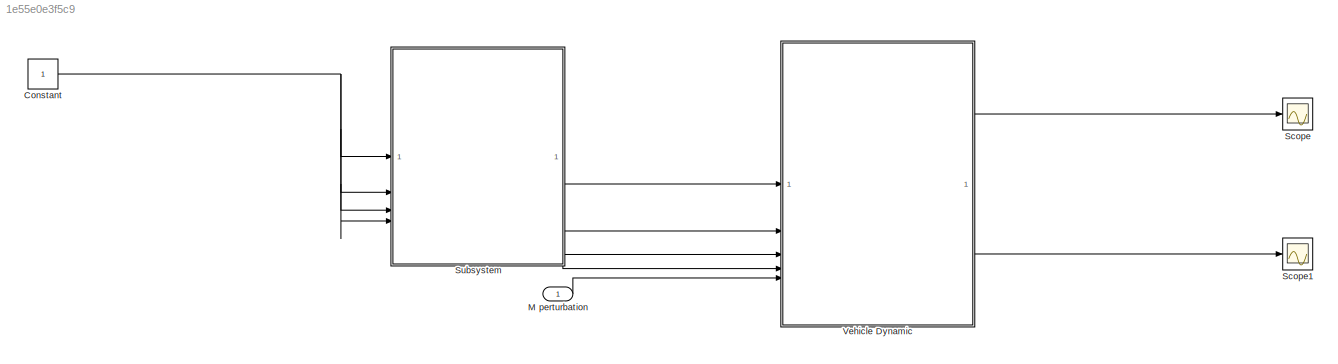
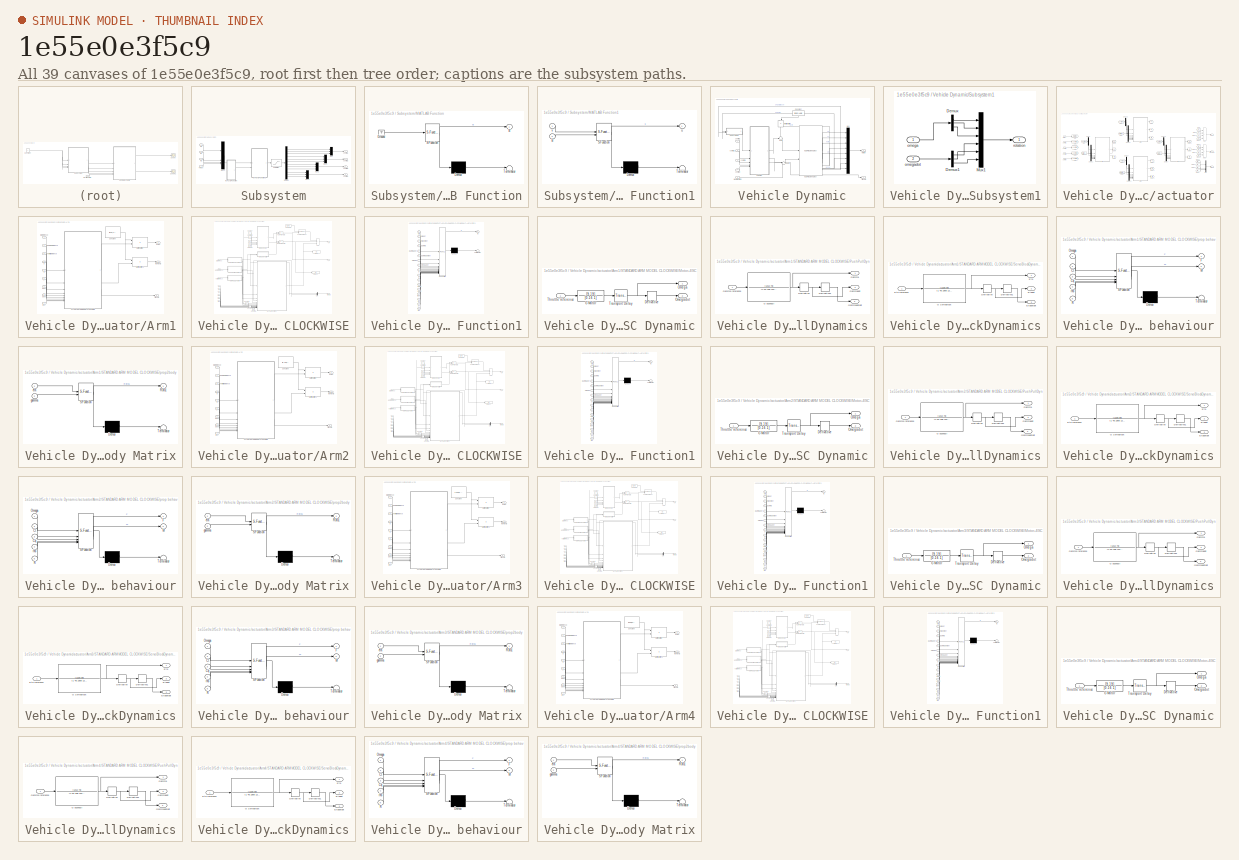
[diagram: thumbnail index - all 39 canvases of the model, root first then tree order]
MODEL slx_1e55e0e3f5c9
KIND model
CONFIG AbsTol = auto
CONFIG EnableMultiTasking = off
CONFIG FixedStep = auto
CONFIG MaxStep = auto
CONFIG MinStep = auto
CONFIG RelTol = 1e-3
CONFIG SampleTimeConstraint = Unconstrained
CONFIG SolverName = VariableStepAuto
CONFIG StartTime = 0.0
CONFIG StopTime = 10.0
BLOCK [Constant] Constant
BLOCK [Inport] M perturbation
BLOCK [Scope] Scope
  Floating = off
  GraphicalSettings = {"GraphicalSettings":{"LegacySettings":true,"Style":{"Style":{"PlotType":"Auto"}}}}
  NumInputPorts = 1
  WasSavedAsWebScope = on
BLOCK [Scope] Scope1
  DataLoggingVariableName = ScopeData1
  Floating = off
  GraphicalSettings = {"GraphicalSettings":{"LegacySettings":true,"Style":{"Style":{"PlotType":"Auto"}}}}
  NumInputPorts = 1
  WasSavedAsWebScope = on
BLOCK [SubSystem] Subsystem
BLOCK [Demux] Subsystem/Demux
  Outputs = 12
BLOCK [SubSystem] Subsystem/MATLAB Function
  ErrorFcn = Stateflow.Translate.translate
  PermitHierarchicalResolution = ExplicitOnly
  SFBlockType = MATLAB Function
  TreatAsAtomicUnit = on
BLOCK [Demux] Subsystem/MATLAB Function/ Demux 
  Outputs = 1
BLOCK [Ground] Subsystem/MATLAB Function/ Ground 
BLOCK [S-Function] Subsystem/MATLAB Function/ SFunction 
  EnableBusSupport = off
  FunctionName = sf_sfun
  PortCounts = [1 2]
  SFcnIsStateOwnerBlock = off
  SFunctionDeploymentMode = off
  Tag = Stateflow S-Function 13
BLOCK [Terminator] Subsystem/MATLAB Function/ Terminator 
BLOCK [Outport] Subsystem/MATLAB Function/B
BLOCK [SubSystem] Subsystem/MATLAB Function1
  ErrorFcn = Stateflow.Translate.translate
  PermitHierarchicalResolution = ExplicitOnly
  SFBlockType = MATLAB Function
  TreatAsAtomicUnit = on
BLOCK [Demux] Subsystem/MATLAB Function1/ Demux 
  Outputs = 1
BLOCK [S-Function] Subsystem/MATLAB Function1/ SFunction 
  EnableBusSupport = off
  FunctionName = sf_sfun
  PortCounts = [2 2]
  SFcnIsStateOwnerBlock = off
  SFunctionDeploymentMode = off
  Tag = Stateflow S-Function 14
BLOCK [Terminator] Subsystem/MATLAB Function1/ Terminator 
BLOCK [Inport] Subsystem/MATLAB Function1/B
  Port = 2
BLOCK [Outport] Subsystem/MATLAB Function1/u
BLOCK [Inport] Subsystem/MATLAB Function1/v
BLOCK [Mux] Subsystem/Mux
  DisplayOption = bar
  Inputs = 3
BLOCK [Mux] Subsystem/Mux1
  DisplayOption = bar
  Inputs = 3
BLOCK [Mux] Subsystem/Mux2
  DisplayOption = bar
  Inputs = 3
BLOCK [Mux] Subsystem/Mux3
  DisplayOption = bar
  Inputs = 3
BLOCK [Mux] Subsystem/Mux4
  DisplayOption = bar
BLOCK [Inport] Subsystem/Mx
  Port = 2
BLOCK [Inport] Subsystem/My
BLOCK [Inport] Subsystem/Mz
  Port = 3
BLOCK [Saturate] Subsystem/Saturation
  LowerLimit = [0 -30*pi/180 -0.2  0 -30*pi/180 -0.2  0 -30*pi/180 -0.2  0 -30*pi/180 -0.2]
  UpperLimit = [1  30*pi/180  0.2  1  30*pi/180  0.2  1  30*pi/180  0.2  1  30*pi/180  0.2]
BLOCK [Inport] Subsystem/Thrust
  Port = 4
BLOCK [Outport] Subsystem/control1
BLOCK [Outport] Subsystem/control2
  Port = 2
BLOCK [Outport] Subsystem/control3
  Port = 3
BLOCK [Outport] Subsystem/control4
  Port = 4
BLOCK [SubSystem] Vehicle Dynamic
BLOCK [Reference] Vehicle Dynamic/6DOF (Euler Angles)  REF=aerolibobsolete/6DOF (Euler Angles)
  SourceBlock = aerolibobsolete/6DOF (Euler Angles)
  SourceType = 6DOF EoM (Body Axis)
BLOCK [Constant] Vehicle Dynamic/Constant
  NameLocation = left
  Value = [0 0 g*AUM]
BLOCK [Inport] Vehicle Dynamic/M perturbation
  Port = 5
BLOCK [Product] Vehicle Dynamic/Matrix Multiply
  Multiplication = Matrix(*)
  NameLocation = left
BLOCK [Outport] Vehicle Dynamic/Motion
BLOCK [Mux] Vehicle Dynamic/Mux
  DisplayOption = bar
  Inputs = 8
BLOCK [SubSystem] Vehicle Dynamic/Subsystem1
BLOCK [Demux] Vehicle Dynamic/Subsystem1/Demux
  Outputs = 3
BLOCK [Demux] Vehicle Dynamic/Subsystem1/Demux1
  Outputs = 3
BLOCK [Mux] Vehicle Dynamic/Subsystem1/Mux1
  DisplayOption = bar
  Inputs = 6
BLOCK [Inport] Vehicle Dynamic/Subsystem1/omega
BLOCK [Inport] Vehicle Dynamic/Subsystem1/omegadot
  Port = 2
BLOCK [Outport] Vehicle Dynamic/Subsystem1/rotation
BLOCK [Sum] Vehicle Dynamic/Sum
  Inputs = ++|
BLOCK [Sum] Vehicle Dynamic/Sum1
  Inputs = |++
BLOCK [Outport] Vehicle Dynamic/TiltAngle
  Port = 2
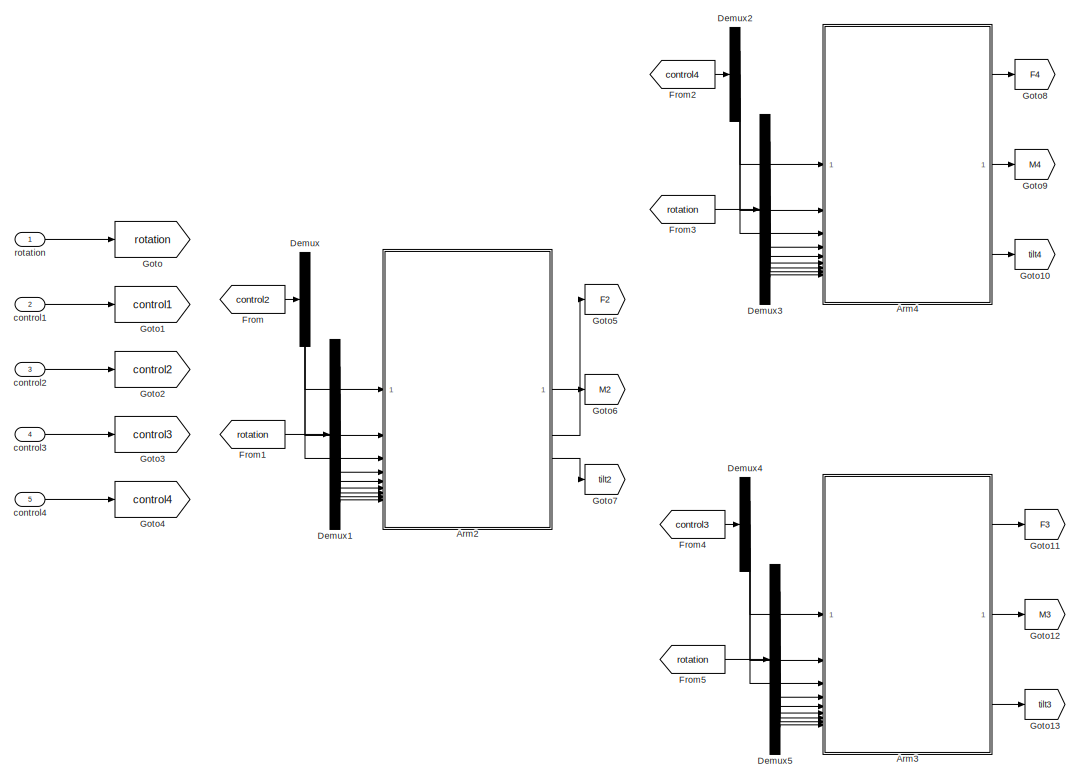
[diagram: Vehicle Dynamic/actuator - part 1/2, left side, full height]
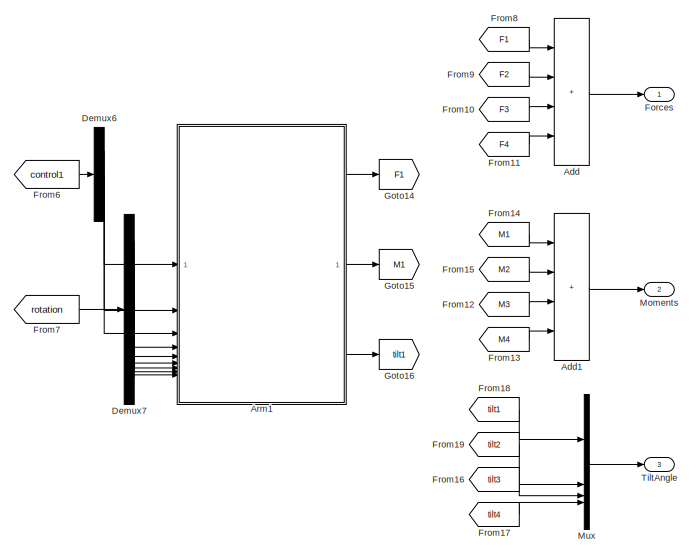
[diagram: Vehicle Dynamic/actuator - part 2/2, middle right region]
BLOCK [SubSystem] Vehicle Dynamic/actuator
BLOCK [Sum] Vehicle Dynamic/actuator/Add
  IconShape = rectangular
  Inputs = ++++
BLOCK [Sum] Vehicle Dynamic/actuator/Add1
  IconShape = rectangular
  Inputs = ++++
BLOCK [SubSystem] Vehicle Dynamic/actuator/Arm1
BLOCK [Constant] Vehicle Dynamic/actuator/Arm1/Constant
  Value = [0 1 0; -1 0 0; 0 0 1]
BLOCK [Inport] Vehicle Dynamic/actuator/Arm1/Eta reference
BLOCK [Outport] Vehicle Dynamic/actuator/Arm1/Force
BLOCK [Inport] Vehicle Dynamic/actuator/Arm1/Gamma reference
  Port = 2
BLOCK [Product] Vehicle Dynamic/actuator/Arm1/Matrix Multiply
  Multiplication = Matrix(*)
BLOCK [Product] Vehicle Dynamic/actuator/Arm1/Matrix Multiply1
  Multiplication = Matrix(*)
BLOCK [Outport] Vehicle Dynamic/actuator/Arm1/Moments
  Port = 2
BLOCK [SubSystem] Vehicle Dynamic/actuator/Arm1/STANDARD ARM MODEL CLOCKWISE
BLOCK [Reference] Vehicle Dynamic/actuator/Arm1/STANDARD ARM MODEL CLOCKWISE/3x3 Cross Product  REF=sharedutil/3x3 Cross Product
  LibrarySourceBlock = aerolibutil/3x3 Cross Product
  SourceBlock = sharedutil/3x3 Cross Product
  SourceType = CrossProduct
BLOCK [Sum] Vehicle Dynamic/actuator/Arm1/STANDARD ARM MODEL CLOCKWISE/Add
  IconShape = rectangular
  Inputs = +++
BLOCK [Constant] Vehicle Dynamic/actuator/Arm1/STANDARD ARM MODEL CLOCKWISE/Constant
  Value = Ct
BLOCK [Constant] Vehicle Dynamic/actuator/Arm1/STANDARD ARM MODEL CLOCKWISE/Constant1
  Value = Cq
BLOCK [Constant] Vehicle Dynamic/actuator/Arm1/STANDARD ARM MODEL CLOCKWISE/Constant2
  Value = [0 L -H]
BLOCK [Constant] Vehicle Dynamic/actuator/Arm1/STANDARD ARM MODEL CLOCKWISE/Constant3
  Value = Ixx
BLOCK [Constant] Vehicle Dynamic/actuator/Arm1/STANDARD ARM MODEL CLOCKWISE/Constant4
  Value = Iyy
BLOCK [Constant] Vehicle Dynamic/actuator/Arm1/STANDARD ARM MODEL CLOCKWISE/Constant5
  Value = Izz
BLOCK [Constant] Vehicle Dynamic/actuator/Arm1/STANDARD ARM MODEL CLOCKWISE/Density
  Value = rho
BLOCK [Display] Vehicle Dynamic/actuator/Arm1/STANDARD ARM MODEL CLOCKWISE/Display
  Decimation = 1
BLOCK [Display] Vehicle Dynamic/actuator/Arm1/STANDARD ARM MODEL CLOCKWISE/Display1
  Decimation = 1
BLOCK [Inport] Vehicle Dynamic/actuator/Arm1/STANDARD ARM MODEL CLOCKWISE/Eta reference
BLOCK [Outport] Vehicle Dynamic/actuator/Arm1/STANDARD ARM MODEL CLOCKWISE/F
BLOCK [Product] Vehicle Dynamic/actuator/Arm1/STANDARD ARM MODEL CLOCKWISE/Force Transform
  Multiplication = Matrix(*)
BLOCK [Inport] Vehicle Dynamic/actuator/Arm1/STANDARD ARM MODEL CLOCKWISE/Gamma reference
  Port = 2
BLOCK [Outport] Vehicle Dynamic/actuator/Arm1/STANDARD ARM MODEL CLOCKWISE/M
  Port = 2
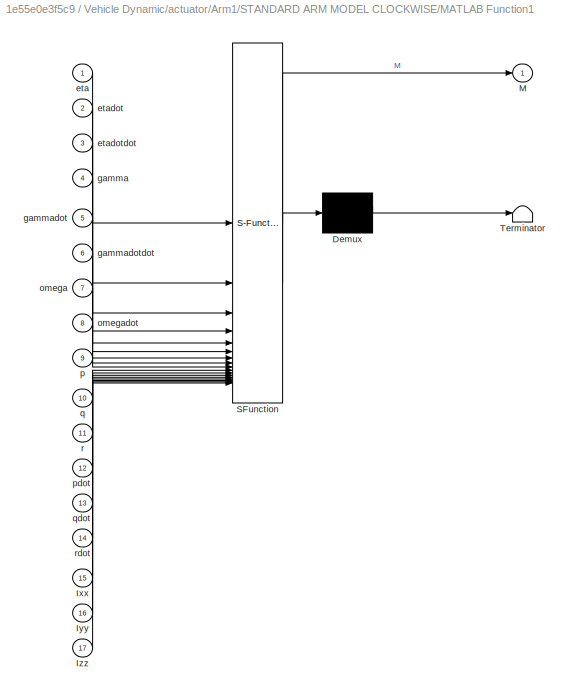
BLOCK [SubSystem] Vehicle Dynamic/actuator/Arm1/STANDARD ARM MODEL CLOCKWISE/MATLAB Function1
  ErrorFcn = Stateflow.Translate.translate
  PermitHierarchicalResolution = ExplicitOnly
  SFBlockType = MATLAB Function
  TreatAsAtomicUnit = on
BLOCK [Demux] Vehicle Dynamic/actuator/Arm1/STANDARD ARM MODEL CLOCKWISE/MATLAB Function1/ Demux 
  Outputs = 1
BLOCK [S-Function] Vehicle Dynamic/actuator/Arm1/STANDARD ARM MODEL CLOCKWISE/MATLAB Function1/ SFunction 
  EnableBusSupport = off
  FunctionName = sf_sfun
  PortCounts = [17 2]
  SFcnIsStateOwnerBlock = off
  SFunctionDeploymentMode = off
  Tag = Stateflow S-Function 10
BLOCK [Terminator] Vehicle Dynamic/actuator/Arm1/STANDARD ARM MODEL CLOCKWISE/MATLAB Function1/ Terminator 
BLOCK [Inport] Vehicle Dynamic/actuator/Arm1/STANDARD ARM MODEL CLOCKWISE/MATLAB Function1/Ixx
  Port = 15
BLOCK [Inport] Vehicle Dynamic/actuator/Arm1/STANDARD ARM MODEL CLOCKWISE/MATLAB Function1/Iyy
  Port = 16
BLOCK [Inport] Vehicle Dynamic/actuator/Arm1/STANDARD ARM MODEL CLOCKWISE/MATLAB Function1/Izz
  Port = 17
BLOCK [Outport] Vehicle Dynamic/actuator/Arm1/STANDARD ARM MODEL CLOCKWISE/MATLAB Function1/M
BLOCK [Inport] Vehicle Dynamic/actuator/Arm1/STANDARD ARM MODEL CLOCKWISE/MATLAB Function1/eta
BLOCK [Inport] Vehicle Dynamic/actuator/Arm1/STANDARD ARM MODEL CLOCKWISE/MATLAB Function1/etadot
  Port = 2
BLOCK [Inport] Vehicle Dynamic/actuator/Arm1/STANDARD ARM MODEL CLOCKWISE/MATLAB Function1/etadotdot
  Port = 3
BLOCK [Inport] Vehicle Dynamic/actuator/Arm1/STANDARD ARM MODEL CLOCKWISE/MATLAB Function1/gamma
  Port = 4
BLOCK [Inport] Vehicle Dynamic/actuator/Arm1/STANDARD ARM MODEL CLOCKWISE/MATLAB Function1/gammadot
  Port = 5
BLOCK [Inport] Vehicle Dynamic/actuator/Arm1/STANDARD ARM MODEL CLOCKWISE/MATLAB Function1/gammadotdot
  Port = 6
BLOCK [Inport] Vehicle Dynamic/actuator/Arm1/STANDARD ARM MODEL CLOCKWISE/MATLAB Function1/omega
  Port = 7
BLOCK [Inport] Vehicle Dynamic/actuator/Arm1/STANDARD ARM MODEL CLOCKWISE/MATLAB Function1/omegadot
  Port = 8
BLOCK [Inport] Vehicle Dynamic/actuator/Arm1/STANDARD ARM MODEL CLOCKWISE/MATLAB Function1/p
  Port = 9
BLOCK [Inport] Vehicle Dynamic/actuator/Arm1/STANDARD ARM MODEL CLOCKWISE/MATLAB Function1/pdot
  Port = 12
BLOCK [Inport] Vehicle Dynamic/actuator/Arm1/STANDARD ARM MODEL CLOCKWISE/MATLAB Function1/q
  Port = 10
BLOCK [Inport] Vehicle Dynamic/actuator/Arm1/STANDARD ARM MODEL CLOCKWISE/MATLAB Function1/qdot
  Port = 13
BLOCK [Inport] Vehicle Dynamic/actuator/Arm1/STANDARD ARM MODEL CLOCKWISE/MATLAB Function1/r
  Port = 11
BLOCK [Inport] Vehicle Dynamic/actuator/Arm1/STANDARD ARM MODEL CLOCKWISE/MATLAB Function1/rdot
  Port = 14
BLOCK [Product] Vehicle Dynamic/actuator/Arm1/STANDARD ARM MODEL CLOCKWISE/Moment Transform
  Multiplication = Matrix(*)
BLOCK [SubSystem] Vehicle Dynamic/actuator/Arm1/STANDARD ARM MODEL CLOCKWISE/Motor+ESC Dynamic
BLOCK [Derivative] Vehicle Dynamic/actuator/Arm1/STANDARD ARM MODEL CLOCKWISE/Motor+ESC Dynamic/Derivative
BLOCK [TransferFcn] Vehicle Dynamic/actuator/Arm1/STANDARD ARM MODEL CLOCKWISE/Motor+ESC Dynamic/G Motor
  Denominator = [0.16 1]
  Numerator = [9.19]
BLOCK [Outport] Vehicle Dynamic/actuator/Arm1/STANDARD ARM MODEL CLOCKWISE/Motor+ESC Dynamic/Omega
BLOCK [Outport] Vehicle Dynamic/actuator/Arm1/STANDARD ARM MODEL CLOCKWISE/Motor+ESC Dynamic/Omegadot
  Port = 2
BLOCK [Inport] Vehicle Dynamic/actuator/Arm1/STANDARD ARM MODEL CLOCKWISE/Motor+ESC Dynamic/Throttle reference
BLOCK [TransportDelay] Vehicle Dynamic/actuator/Arm1/STANDARD ARM MODEL CLOCKWISE/Motor+ESC Dynamic/Transport Delay
  DelayTime = 0.035
BLOCK [Mux] Vehicle Dynamic/actuator/Arm1/STANDARD ARM MODEL CLOCKWISE/Mux
  DisplayOption = bar
  Inputs = 2
BLOCK [Constant] Vehicle Dynamic/actuator/Arm1/STANDARD ARM MODEL CLOCKWISE/Prop radius
  Value = R_rad
BLOCK [SubSystem] Vehicle Dynamic/actuator/Arm1/STANDARD ARM MODEL CLOCKWISE/PushPullDynamics
BLOCK [Derivative] Vehicle Dynamic/actuator/Arm1/STANDARD ARM MODEL CLOCKWISE/PushPullDynamics/Derivative
BLOCK [Derivative] Vehicle Dynamic/actuator/Arm1/STANDARD ARM MODEL CLOCKWISE/PushPullDynamics/Derivative1
BLOCK [TransferFcn] Vehicle Dynamic/actuator/Arm1/STANDARD ARM MODEL CLOCKWISE/PushPullDynamics/G pushpull
  Denominator = [1 51.105 1212.73]
  Numerator = [1212.73]
BLOCK [Outport] Vehicle Dynamic/actuator/Arm1/STANDARD ARM MODEL CLOCKWISE/PushPullDynamics/Gamma
BLOCK [Inport] Vehicle Dynamic/actuator/Arm1/STANDARD ARM MODEL CLOCKWISE/PushPullDynamics/Gamma reference
BLOCK [Outport] Vehicle Dynamic/actuator/Arm1/STANDARD ARM MODEL CLOCKWISE/PushPullDynamics/Gammadot
  Port = 2
BLOCK [Outport] Vehicle Dynamic/actuator/Arm1/STANDARD ARM MODEL CLOCKWISE/PushPullDynamics/Gammadotdot
  Port = 3
BLOCK [SubSystem] Vehicle Dynamic/actuator/Arm1/STANDARD ARM MODEL CLOCKWISE/ServoBlockDynamics
BLOCK [Derivative] Vehicle Dynamic/actuator/Arm1/STANDARD ARM MODEL CLOCKWISE/ServoBlockDynamics/Derivative
BLOCK [Derivative] Vehicle Dynamic/actuator/Arm1/STANDARD ARM MODEL CLOCKWISE/ServoBlockDynamics/Derivative1
BLOCK [Outport] Vehicle Dynamic/actuator/Arm1/STANDARD ARM MODEL CLOCKWISE/ServoBlockDynamics/Eta
BLOCK [Inport] Vehicle Dynamic/actuator/Arm1/STANDARD ARM MODEL CLOCKWISE/ServoBlockDynamics/Eta reference
BLOCK [Outport] Vehicle Dynamic/actuator/Arm1/STANDARD ARM MODEL CLOCKWISE/ServoBlockDynamics/Etadot
  Port = 2
BLOCK [Outport] Vehicle Dynamic/actuator/Arm1/STANDARD ARM MODEL CLOCKWISE/ServoBlockDynamics/Etadotdot
  Port = 3
BLOCK [TransferFcn] Vehicle Dynamic/actuator/Arm1/STANDARD ARM MODEL CLOCKWISE/ServoBlockDynamics/G Servoblock
  Denominator = [1 49.1806 1228.05]
  Numerator = [1228.05]
BLOCK [Inport] Vehicle Dynamic/actuator/Arm1/STANDARD ARM MODEL CLOCKWISE/Throttle reference
  Port = 3
BLOCK [Outport] Vehicle Dynamic/actuator/Arm1/STANDARD ARM MODEL CLOCKWISE/TiltAngle
  Port = 3
BLOCK [Inport] Vehicle Dynamic/actuator/Arm1/STANDARD ARM MODEL CLOCKWISE/p
  Port = 4
BLOCK [Inport] Vehicle Dynamic/actuator/Arm1/STANDARD ARM MODEL CLOCKWISE/pdot
  Port = 7
BLOCK [SubSystem] Vehicle Dynamic/actuator/Arm1/STANDARD ARM MODEL CLOCKWISE/prop behaviour
  ErrorFcn = Stateflow.Translate.translate
  PermitHierarchicalResolution = ExplicitOnly
  SFBlockType = MATLAB Function
  TreatAsAtomicUnit = on
BLOCK [Demux] Vehicle Dynamic/actuator/Arm1/STANDARD ARM MODEL CLOCKWISE/prop behaviour/ Demux 
  Outputs = 1
BLOCK [S-Function] Vehicle Dynamic/actuator/Arm1/STANDARD ARM MODEL CLOCKWISE/prop behaviour/ SFunction 
  EnableBusSupport = off
  FunctionName = sf_sfun
  PortCounts = [5 3]
  SFcnIsStateOwnerBlock = off
  SFunctionDeploymentMode = off
  Tag = Stateflow S-Function 11
BLOCK [Terminator] Vehicle Dynamic/actuator/Arm1/STANDARD ARM MODEL CLOCKWISE/prop behaviour/ Terminator 
BLOCK [Inport] Vehicle Dynamic/actuator/Arm1/STANDARD ARM MODEL CLOCKWISE/prop behaviour/Cq
  Port = 3
BLOCK [Inport] Vehicle Dynamic/actuator/Arm1/STANDARD ARM MODEL CLOCKWISE/prop behaviour/Ct
  Port = 2
BLOCK [Outport] Vehicle Dynamic/actuator/Arm1/STANDARD ARM MODEL CLOCKWISE/prop behaviour/F
BLOCK [Outport] Vehicle Dynamic/actuator/Arm1/STANDARD ARM MODEL CLOCKWISE/prop behaviour/M
  Port = 2
BLOCK [Inport] Vehicle Dynamic/actuator/Arm1/STANDARD ARM MODEL CLOCKWISE/prop behaviour/Omega
BLOCK [Inport] Vehicle Dynamic/actuator/Arm1/STANDARD ARM MODEL CLOCKWISE/prop behaviour/R
  Port = 5
BLOCK [Inport] Vehicle Dynamic/actuator/Arm1/STANDARD ARM MODEL CLOCKWISE/prop behaviour/rho
  Port = 4
BLOCK [SubSystem] Vehicle Dynamic/actuator/Arm1/STANDARD ARM MODEL CLOCKWISE/prop2body Matrix
  ErrorFcn = Stateflow.Translate.translate
  PermitHierarchicalResolution = ExplicitOnly
  SFBlockType = MATLAB Function
  TreatAsAtomicUnit = on
BLOCK [Demux] Vehicle Dynamic/actuator/Arm1/STANDARD ARM MODEL CLOCKWISE/prop2body Matrix/ Demux 
  Outputs = 1
BLOCK [S-Function] Vehicle Dynamic/actuator/Arm1/STANDARD ARM MODEL CLOCKWISE/prop2body Matrix/ SFunction 
  EnableBusSupport = off
  FunctionName = sf_sfun
  PortCounts = [2 2]
  SFcnIsStateOwnerBlock = off
  SFunctionDeploymentMode = off
  Tag = Stateflow S-Function 12
BLOCK [Terminator] Vehicle Dynamic/actuator/Arm1/STANDARD ARM MODEL CLOCKWISE/prop2body Matrix/ Terminator 
BLOCK [Outport] Vehicle Dynamic/actuator/Arm1/STANDARD ARM MODEL CLOCKWISE/prop2body Matrix/R3to1
BLOCK [Inport] Vehicle Dynamic/actuator/Arm1/STANDARD ARM MODEL CLOCKWISE/prop2body Matrix/eta
BLOCK [Inport] Vehicle Dynamic/actuator/Arm1/STANDARD ARM MODEL CLOCKWISE/prop2body Matrix/gamma
  Port = 2
BLOCK [Inport] Vehicle Dynamic/actuator/Arm1/STANDARD ARM MODEL CLOCKWISE/q
  Port = 5
BLOCK [Inport] Vehicle Dynamic/actuator/Arm1/STANDARD ARM MODEL CLOCKWISE/qdot
  Port = 8
BLOCK [Inport] Vehicle Dynamic/actuator/Arm1/STANDARD ARM MODEL CLOCKWISE/r
  Port = 6
BLOCK [Inport] Vehicle Dynamic/actuator/Arm1/STANDARD ARM MODEL CLOCKWISE/rdot
  Port = 9
BLOCK [Inport] Vehicle Dynamic/actuator/Arm1/Throttle reference
  Port = 3
BLOCK [Outport] Vehicle Dynamic/actuator/Arm1/TiltAngle
  Port = 3
BLOCK [Inport] Vehicle Dynamic/actuator/Arm1/p
  Port = 4
BLOCK [Inport] Vehicle Dynamic/actuator/Arm1/pdot
  Port = 7
BLOCK [Inport] Vehicle Dynamic/actuator/Arm1/q
  Port = 5
BLOCK [Inport] Vehicle Dynamic/actuator/Arm1/qdot
  Port = 8
BLOCK [Inport] Vehicle Dynamic/actuator/Arm1/r
  Port = 6
BLOCK [Inport] Vehicle Dynamic/actuator/Arm1/rdot
  Port = 9
BLOCK [SubSystem] Vehicle Dynamic/actuator/Arm2
BLOCK [Constant] Vehicle Dynamic/actuator/Arm2/Constant
  Value = [0 -1 0; 1 0 0; 0 0 1]
BLOCK [Inport] Vehicle Dynamic/actuator/Arm2/Eta reference
BLOCK [Outport] Vehicle Dynamic/actuator/Arm2/Force
BLOCK [Inport] Vehicle Dynamic/actuator/Arm2/Gamma reference
  Port = 2
BLOCK [Product] Vehicle Dynamic/actuator/Arm2/Matrix Multiply
  Multiplication = Matrix(*)
BLOCK [Product] Vehicle Dynamic/actuator/Arm2/Matrix Multiply1
  Multiplication = Matrix(*)
BLOCK [Outport] Vehicle Dynamic/actuator/Arm2/Moments
  Port = 2
BLOCK [SubSystem] Vehicle Dynamic/actuator/Arm2/STANDARD ARM MODEL CLOCKWISE
BLOCK [Reference] Vehicle Dynamic/actuator/Arm2/STANDARD ARM MODEL CLOCKWISE/3x3 Cross Product  REF=sharedutil/3x3 Cross Product
  LibrarySourceBlock = aerolibutil/3x3 Cross Product
  SourceBlock = sharedutil/3x3 Cross Product
  SourceType = CrossProduct
BLOCK [Sum] Vehicle Dynamic/actuator/Arm2/STANDARD ARM MODEL CLOCKWISE/Add
  IconShape = rectangular
  Inputs = +++
BLOCK [Constant] Vehicle Dynamic/actuator/Arm2/STANDARD ARM MODEL CLOCKWISE/Constant
  Value = Ct
BLOCK [Constant] Vehicle Dynamic/actuator/Arm2/STANDARD ARM MODEL CLOCKWISE/Constant1
  Value = Cq
BLOCK [Constant] Vehicle Dynamic/actuator/Arm2/STANDARD ARM MODEL CLOCKWISE/Constant2
  Value = [0 L -H]
BLOCK [Constant] Vehicle Dynamic/actuator/Arm2/STANDARD ARM MODEL CLOCKWISE/Constant3
  Value = Ixx
BLOCK [Constant] Vehicle Dynamic/actuator/Arm2/STANDARD ARM MODEL CLOCKWISE/Constant4
  Value = Iyy
BLOCK [Constant] Vehicle Dynamic/actuator/Arm2/STANDARD ARM MODEL CLOCKWISE/Constant5
  Value = Izz
BLOCK [Constant] Vehicle Dynamic/actuator/Arm2/STANDARD ARM MODEL CLOCKWISE/Density
  Value = rho
BLOCK [Display] Vehicle Dynamic/actuator/Arm2/STANDARD ARM MODEL CLOCKWISE/Display
  Decimation = 1
BLOCK [Display] Vehicle Dynamic/actuator/Arm2/STANDARD ARM MODEL CLOCKWISE/Display1
  Decimation = 1
BLOCK [Inport] Vehicle Dynamic/actuator/Arm2/STANDARD ARM MODEL CLOCKWISE/Eta reference
BLOCK [Outport] Vehicle Dynamic/actuator/Arm2/STANDARD ARM MODEL CLOCKWISE/F
BLOCK [Product] Vehicle Dynamic/actuator/Arm2/STANDARD ARM MODEL CLOCKWISE/Force Transform
  Multiplication = Matrix(*)
BLOCK [Inport] Vehicle Dynamic/actuator/Arm2/STANDARD ARM MODEL CLOCKWISE/Gamma reference
  Port = 2
BLOCK [Outport] Vehicle Dynamic/actuator/Arm2/STANDARD ARM MODEL CLOCKWISE/M
  Port = 2
BLOCK [SubSystem] Vehicle Dynamic/actuator/Arm2/STANDARD ARM MODEL CLOCKWISE/MATLAB Function1
  ErrorFcn = Stateflow.Translate.translate
  PermitHierarchicalResolution = ExplicitOnly
  SFBlockType = MATLAB Function
  TreatAsAtomicUnit = on
BLOCK [Demux] Vehicle Dynamic/actuator/Arm2/STANDARD ARM MODEL CLOCKWISE/MATLAB Function1/ Demux 
  Outputs = 1
BLOCK [S-Function] Vehicle Dynamic/actuator/Arm2/STANDARD ARM MODEL CLOCKWISE/MATLAB Function1/ SFunction 
  EnableBusSupport = off
  FunctionName = sf_sfun
  PortCounts = [17 2]
  SFcnIsStateOwnerBlock = off
  SFunctionDeploymentMode = off
  Tag = Stateflow S-Function 3
BLOCK [Terminator] Vehicle Dynamic/actuator/Arm2/STANDARD ARM MODEL CLOCKWISE/MATLAB Function1/ Terminator 
BLOCK [Inport] Vehicle Dynamic/actuator/Arm2/STANDARD ARM MODEL CLOCKWISE/MATLAB Function1/Ixx
  Port = 15
BLOCK [Inport] Vehicle Dynamic/actuator/Arm2/STANDARD ARM MODEL CLOCKWISE/MATLAB Function1/Iyy
  Port = 16
BLOCK [Inport] Vehicle Dynamic/actuator/Arm2/STANDARD ARM MODEL CLOCKWISE/MATLAB Function1/Izz
  Port = 17
BLOCK [Outport] Vehicle Dynamic/actuator/Arm2/STANDARD ARM MODEL CLOCKWISE/MATLAB Function1/M
BLOCK [Inport] Vehicle Dynamic/actuator/Arm2/STANDARD ARM MODEL CLOCKWISE/MATLAB Function1/eta
BLOCK [Inport] Vehicle Dynamic/actuator/Arm2/STANDARD ARM MODEL CLOCKWISE/MATLAB Function1/etadot
  Port = 2
BLOCK [Inport] Vehicle Dynamic/actuator/Arm2/STANDARD ARM MODEL CLOCKWISE/MATLAB Function1/etadotdot
  Port = 3
BLOCK [Inport] Vehicle Dynamic/actuator/Arm2/STANDARD ARM MODEL CLOCKWISE/MATLAB Function1/gamma
  Port = 4
BLOCK [Inport] Vehicle Dynamic/actuator/Arm2/STANDARD ARM MODEL CLOCKWISE/MATLAB Function1/gammadot
  Port = 5
BLOCK [Inport] Vehicle Dynamic/actuator/Arm2/STANDARD ARM MODEL CLOCKWISE/MATLAB Function1/gammadotdot
  Port = 6
BLOCK [Inport] Vehicle Dynamic/actuator/Arm2/STANDARD ARM MODEL CLOCKWISE/MATLAB Function1/omega
  Port = 7
BLOCK [Inport] Vehicle Dynamic/actuator/Arm2/STANDARD ARM MODEL CLOCKWISE/MATLAB Function1/omegadot
  Port = 8
BLOCK [Inport] Vehicle Dynamic/actuator/Arm2/STANDARD ARM MODEL CLOCKWISE/MATLAB Function1/p
  Port = 9
BLOCK [Inport] Vehicle Dynamic/actuator/Arm2/STANDARD ARM MODEL CLOCKWISE/MATLAB Function1/pdot
  Port = 12
BLOCK [Inport] Vehicle Dynamic/actuator/Arm2/STANDARD ARM MODEL CLOCKWISE/MATLAB Function1/q
  Port = 10
BLOCK [Inport] Vehicle Dynamic/actuator/Arm2/STANDARD ARM MODEL CLOCKWISE/MATLAB Function1/qdot
  Port = 13
BLOCK [Inport] Vehicle Dynamic/actuator/Arm2/STANDARD ARM MODEL CLOCKWISE/MATLAB Function1/r
  Port = 11
BLOCK [Inport] Vehicle Dynamic/actuator/Arm2/STANDARD ARM MODEL CLOCKWISE/MATLAB Function1/rdot
  Port = 14
BLOCK [Product] Vehicle Dynamic/actuator/Arm2/STANDARD ARM MODEL CLOCKWISE/Moment Transform
  Multiplication = Matrix(*)
BLOCK [SubSystem] Vehicle Dynamic/actuator/Arm2/STANDARD ARM MODEL CLOCKWISE/Motor+ESC Dynamic
BLOCK [Derivative] Vehicle Dynamic/actuator/Arm2/STANDARD ARM MODEL CLOCKWISE/Motor+ESC Dynamic/Derivative
BLOCK [TransferFcn] Vehicle Dynamic/actuator/Arm2/STANDARD ARM MODEL CLOCKWISE/Motor+ESC Dynamic/G Motor
  Denominator = [0.16 1]
  Numerator = [9.19]
BLOCK [Outport] Vehicle Dynamic/actuator/Arm2/STANDARD ARM MODEL CLOCKWISE/Motor+ESC Dynamic/Omega
BLOCK [Outport] Vehicle Dynamic/actuator/Arm2/STANDARD ARM MODEL CLOCKWISE/Motor+ESC Dynamic/Omegadot
  Port = 2
BLOCK [Inport] Vehicle Dynamic/actuator/Arm2/STANDARD ARM MODEL CLOCKWISE/Motor+ESC Dynamic/Throttle reference
BLOCK [TransportDelay] Vehicle Dynamic/actuator/Arm2/STANDARD ARM MODEL CLOCKWISE/Motor+ESC Dynamic/Transport Delay
  DelayTime = 0.035
BLOCK [Mux] Vehicle Dynamic/actuator/Arm2/STANDARD ARM MODEL CLOCKWISE/Mux
  DisplayOption = bar
  Inputs = 2
BLOCK [Constant] Vehicle Dynamic/actuator/Arm2/STANDARD ARM MODEL CLOCKWISE/Prop radius
  Value = R_rad
BLOCK [SubSystem] Vehicle Dynamic/actuator/Arm2/STANDARD ARM MODEL CLOCKWISE/PushPullDynamics
BLOCK [Derivative] Vehicle Dynamic/actuator/Arm2/STANDARD ARM MODEL CLOCKWISE/PushPullDynamics/Derivative
BLOCK [Derivative] Vehicle Dynamic/actuator/Arm2/STANDARD ARM MODEL CLOCKWISE/PushPullDynamics/Derivative1
BLOCK [TransferFcn] Vehicle Dynamic/actuator/Arm2/STANDARD ARM MODEL CLOCKWISE/PushPullDynamics/G pushpull
  Denominator = [1 51.105 1212.73]
  Numerator = [1212.73]
BLOCK [Outport] Vehicle Dynamic/actuator/Arm2/STANDARD ARM MODEL CLOCKWISE/PushPullDynamics/Gamma
BLOCK [Inport] Vehicle Dynamic/actuator/Arm2/STANDARD ARM MODEL CLOCKWISE/PushPullDynamics/Gamma reference
BLOCK [Outport] Vehicle Dynamic/actuator/Arm2/STANDARD ARM MODEL CLOCKWISE/PushPullDynamics/Gammadot
  Port = 2
BLOCK [Outport] Vehicle Dynamic/actuator/Arm2/STANDARD ARM MODEL CLOCKWISE/PushPullDynamics/Gammadotdot
  Port = 3
BLOCK [SubSystem] Vehicle Dynamic/actuator/Arm2/STANDARD ARM MODEL CLOCKWISE/ServoBlockDynamics
BLOCK [Derivative] Vehicle Dynamic/actuator/Arm2/STANDARD ARM MODEL CLOCKWISE/ServoBlockDynamics/Derivative
BLOCK [Derivative] Vehicle Dynamic/actuator/Arm2/STANDARD ARM MODEL CLOCKWISE/ServoBlockDynamics/Derivative1
BLOCK [Outport] Vehicle Dynamic/actuator/Arm2/STANDARD ARM MODEL CLOCKWISE/ServoBlockDynamics/Eta
BLOCK [Inport] Vehicle Dynamic/actuator/Arm2/STANDARD ARM MODEL CLOCKWISE/ServoBlockDynamics/Eta reference
BLOCK [Outport] Vehicle Dynamic/actuator/Arm2/STANDARD ARM MODEL CLOCKWISE/ServoBlockDynamics/Etadot
  Port = 2
BLOCK [Outport] Vehicle Dynamic/actuator/Arm2/STANDARD ARM MODEL CLOCKWISE/ServoBlockDynamics/Etadotdot
  Port = 3
BLOCK [TransferFcn] Vehicle Dynamic/actuator/Arm2/STANDARD ARM MODEL CLOCKWISE/ServoBlockDynamics/G Servoblock
  Denominator = [1 49.1806 1228.05]
  Numerator = [1228.05]
BLOCK [Inport] Vehicle Dynamic/actuator/Arm2/STANDARD ARM MODEL CLOCKWISE/Throttle reference
  Port = 3
BLOCK [Outport] Vehicle Dynamic/actuator/Arm2/STANDARD ARM MODEL CLOCKWISE/TiltAngle
  Port = 3
BLOCK [Inport] Vehicle Dynamic/actuator/Arm2/STANDARD ARM MODEL CLOCKWISE/p
  Port = 4
BLOCK [Inport] Vehicle Dynamic/actuator/Arm2/STANDARD ARM MODEL CLOCKWISE/pdot
  Port = 7
BLOCK [SubSystem] Vehicle Dynamic/actuator/Arm2/STANDARD ARM MODEL CLOCKWISE/prop behaviour
  ErrorFcn = Stateflow.Translate.translate
  PermitHierarchicalResolution = ExplicitOnly
  SFBlockType = MATLAB Function
  TreatAsAtomicUnit = on
BLOCK [Demux] Vehicle Dynamic/actuator/Arm2/STANDARD ARM MODEL CLOCKWISE/prop behaviour/ Demux 
  Outputs = 1
BLOCK [S-Function] Vehicle Dynamic/actuator/Arm2/STANDARD ARM MODEL CLOCKWISE/prop behaviour/ SFunction 
  EnableBusSupport = off
  FunctionName = sf_sfun
  PortCounts = [5 3]
  SFcnIsStateOwnerBlock = off
  SFunctionDeploymentMode = off
  Tag = Stateflow S-Function 1
BLOCK [Terminator] Vehicle Dynamic/actuator/Arm2/STANDARD ARM MODEL CLOCKWISE/prop behaviour/ Terminator 
BLOCK [Inport] Vehicle Dynamic/actuator/Arm2/STANDARD ARM MODEL CLOCKWISE/prop behaviour/Cq
  Port = 3
BLOCK [Inport] Vehicle Dynamic/actuator/Arm2/STANDARD ARM MODEL CLOCKWISE/prop behaviour/Ct
  Port = 2
BLOCK [Outport] Vehicle Dynamic/actuator/Arm2/STANDARD ARM MODEL CLOCKWISE/prop behaviour/F
BLOCK [Outport] Vehicle Dynamic/actuator/Arm2/STANDARD ARM MODEL CLOCKWISE/prop behaviour/M
  Port = 2
BLOCK [Inport] Vehicle Dynamic/actuator/Arm2/STANDARD ARM MODEL CLOCKWISE/prop behaviour/Omega
BLOCK [Inport] Vehicle Dynamic/actuator/Arm2/STANDARD ARM MODEL CLOCKWISE/prop behaviour/R
  Port = 5
BLOCK [Inport] Vehicle Dynamic/actuator/Arm2/STANDARD ARM MODEL CLOCKWISE/prop behaviour/rho
  Port = 4
BLOCK [SubSystem] Vehicle Dynamic/actuator/Arm2/STANDARD ARM MODEL CLOCKWISE/prop2body Matrix
  ErrorFcn = Stateflow.Translate.translate
  PermitHierarchicalResolution = ExplicitOnly
  SFBlockType = MATLAB Function
  TreatAsAtomicUnit = on
BLOCK [Demux] Vehicle Dynamic/actuator/Arm2/STANDARD ARM MODEL CLOCKWISE/prop2body Matrix/ Demux 
  Outputs = 1
BLOCK [S-Function] Vehicle Dynamic/actuator/Arm2/STANDARD ARM MODEL CLOCKWISE/prop2body Matrix/ SFunction 
  EnableBusSupport = off
  FunctionName = sf_sfun
  PortCounts = [2 2]
  SFcnIsStateOwnerBlock = off
  SFunctionDeploymentMode = off
  Tag = Stateflow S-Function 2
BLOCK [Terminator] Vehicle Dynamic/actuator/Arm2/STANDARD ARM MODEL CLOCKWISE/prop2body Matrix/ Terminator 
BLOCK [Outport] Vehicle Dynamic/actuator/Arm2/STANDARD ARM MODEL CLOCKWISE/prop2body Matrix/R3to1
BLOCK [Inport] Vehicle Dynamic/actuator/Arm2/STANDARD ARM MODEL CLOCKWISE/prop2body Matrix/eta
BLOCK [Inport] Vehicle Dynamic/actuator/Arm2/STANDARD ARM MODEL CLOCKWISE/prop2body Matrix/gamma
  Port = 2
BLOCK [Inport] Vehicle Dynamic/actuator/Arm2/STANDARD ARM MODEL CLOCKWISE/q
  Port = 5
BLOCK [Inport] Vehicle Dynamic/actuator/Arm2/STANDARD ARM MODEL CLOCKWISE/qdot
  Port = 8
BLOCK [Inport] Vehicle Dynamic/actuator/Arm2/STANDARD ARM MODEL CLOCKWISE/r
  Port = 6
BLOCK [Inport] Vehicle Dynamic/actuator/Arm2/STANDARD ARM MODEL CLOCKWISE/rdot
  Port = 9
BLOCK [Inport] Vehicle Dynamic/actuator/Arm2/Throttle reference
  Port = 3
BLOCK [Outport] Vehicle Dynamic/actuator/Arm2/TiltAngle
  Port = 3
BLOCK [Inport] Vehicle Dynamic/actuator/Arm2/p
  Port = 4
BLOCK [Inport] Vehicle Dynamic/actuator/Arm2/pdot
  Port = 7
BLOCK [Inport] Vehicle Dynamic/actuator/Arm2/q
  Port = 5
BLOCK [Inport] Vehicle Dynamic/actuator/Arm2/qdot
  Port = 8
BLOCK [Inport] Vehicle Dynamic/actuator/Arm2/r
  Port = 6
BLOCK [Inport] Vehicle Dynamic/actuator/Arm2/rdot
  Port = 9
BLOCK [SubSystem] Vehicle Dynamic/actuator/Arm3
BLOCK [Constant] Vehicle Dynamic/actuator/Arm3/Constant
  Value = [-1 0 0;0 -1 0; 0 0 1]
BLOCK [Inport] Vehicle Dynamic/actuator/Arm3/Eta reference
BLOCK [Outport] Vehicle Dynamic/actuator/Arm3/Force
BLOCK [Inport] Vehicle Dynamic/actuator/Arm3/Gamma reference
  Port = 2
BLOCK [Product] Vehicle Dynamic/actuator/Arm3/Matrix Multiply
  Multiplication = Matrix(*)
BLOCK [Product] Vehicle Dynamic/actuator/Arm3/Matrix Multiply1
  Multiplication = Matrix(*)
BLOCK [Outport] Vehicle Dynamic/actuator/Arm3/Moments
  Port = 2
BLOCK [SubSystem] Vehicle Dynamic/actuator/Arm3/STANDARD ARM MODEL CLOCKWISE
BLOCK [Reference] Vehicle Dynamic/actuator/Arm3/STANDARD ARM MODEL CLOCKWISE/3x3 Cross Product  REF=sharedutil/3x3 Cross Product
  LibrarySourceBlock = aerolibutil/3x3 Cross Product
  SourceBlock = sharedutil/3x3 Cross Product
  SourceType = CrossProduct
BLOCK [Sum] Vehicle Dynamic/actuator/Arm3/STANDARD ARM MODEL CLOCKWISE/Add
  IconShape = rectangular
  Inputs = +++
BLOCK [Constant] Vehicle Dynamic/actuator/Arm3/STANDARD ARM MODEL CLOCKWISE/Constant
  Value = Ct
BLOCK [Constant] Vehicle Dynamic/actuator/Arm3/STANDARD ARM MODEL CLOCKWISE/Constant1
  Value = Cq
BLOCK [Constant] Vehicle Dynamic/actuator/Arm3/STANDARD ARM MODEL CLOCKWISE/Constant2
  Value = [0 L -H]
BLOCK [Constant] Vehicle Dynamic/actuator/Arm3/STANDARD ARM MODEL CLOCKWISE/Constant3
  Value = Ixx
BLOCK [Constant] Vehicle Dynamic/actuator/Arm3/STANDARD ARM MODEL CLOCKWISE/Constant4
  Value = Iyy
BLOCK [Constant] Vehicle Dynamic/actuator/Arm3/STANDARD ARM MODEL CLOCKWISE/Constant5
  Value = Izz
BLOCK [Constant] Vehicle Dynamic/actuator/Arm3/STANDARD ARM MODEL CLOCKWISE/Density
  Value = rho
BLOCK [Display] Vehicle Dynamic/actuator/Arm3/STANDARD ARM MODEL CLOCKWISE/Display
  Decimation = 1
BLOCK [Display] Vehicle Dynamic/actuator/Arm3/STANDARD ARM MODEL CLOCKWISE/Display1
  Decimation = 1
BLOCK [Inport] Vehicle Dynamic/actuator/Arm3/STANDARD ARM MODEL CLOCKWISE/Eta reference
BLOCK [Outport] Vehicle Dynamic/actuator/Arm3/STANDARD ARM MODEL CLOCKWISE/F
BLOCK [Product] Vehicle Dynamic/actuator/Arm3/STANDARD ARM MODEL CLOCKWISE/Force Transform
  Multiplication = Matrix(*)
BLOCK [Inport] Vehicle Dynamic/actuator/Arm3/STANDARD ARM MODEL CLOCKWISE/Gamma reference
  Port = 2
BLOCK [Outport] Vehicle Dynamic/actuator/Arm3/STANDARD ARM MODEL CLOCKWISE/M
  Port = 2
BLOCK [SubSystem] Vehicle Dynamic/actuator/Arm3/STANDARD ARM MODEL CLOCKWISE/MATLAB Function1
  ErrorFcn = Stateflow.Translate.translate
  PermitHierarchicalResolution = ExplicitOnly
  SFBlockType = MATLAB Function
  TreatAsAtomicUnit = on
BLOCK [Demux] Vehicle Dynamic/actuator/Arm3/STANDARD ARM MODEL CLOCKWISE/MATLAB Function1/ Demux 
  Outputs = 1
BLOCK [S-Function] Vehicle Dynamic/actuator/Arm3/STANDARD ARM MODEL CLOCKWISE/MATLAB Function1/ SFunction 
  EnableBusSupport = off
  FunctionName = sf_sfun
  PortCounts = [17 2]
  SFcnIsStateOwnerBlock = off
  SFunctionDeploymentMode = off
  Tag = Stateflow S-Function 7
BLOCK [Terminator] Vehicle Dynamic/actuator/Arm3/STANDARD ARM MODEL CLOCKWISE/MATLAB Function1/ Terminator 
BLOCK [Inport] Vehicle Dynamic/actuator/Arm3/STANDARD ARM MODEL CLOCKWISE/MATLAB Function1/Ixx
  Port = 15
BLOCK [Inport] Vehicle Dynamic/actuator/Arm3/STANDARD ARM MODEL CLOCKWISE/MATLAB Function1/Iyy
  Port = 16
BLOCK [Inport] Vehicle Dynamic/actuator/Arm3/STANDARD ARM MODEL CLOCKWISE/MATLAB Function1/Izz
  Port = 17
BLOCK [Outport] Vehicle Dynamic/actuator/Arm3/STANDARD ARM MODEL CLOCKWISE/MATLAB Function1/M
BLOCK [Inport] Vehicle Dynamic/actuator/Arm3/STANDARD ARM MODEL CLOCKWISE/MATLAB Function1/eta
BLOCK [Inport] Vehicle Dynamic/actuator/Arm3/STANDARD ARM MODEL CLOCKWISE/MATLAB Function1/etadot
  Port = 2
BLOCK [Inport] Vehicle Dynamic/actuator/Arm3/STANDARD ARM MODEL CLOCKWISE/MATLAB Function1/etadotdot
  Port = 3
BLOCK [Inport] Vehicle Dynamic/actuator/Arm3/STANDARD ARM MODEL CLOCKWISE/MATLAB Function1/gamma
  Port = 4
BLOCK [Inport] Vehicle Dynamic/actuator/Arm3/STANDARD ARM MODEL CLOCKWISE/MATLAB Function1/gammadot
  Port = 5
BLOCK [Inport] Vehicle Dynamic/actuator/Arm3/STANDARD ARM MODEL CLOCKWISE/MATLAB Function1/gammadotdot
  Port = 6
BLOCK [Inport] Vehicle Dynamic/actuator/Arm3/STANDARD ARM MODEL CLOCKWISE/MATLAB Function1/omega
  Port = 7
BLOCK [Inport] Vehicle Dynamic/actuator/Arm3/STANDARD ARM MODEL CLOCKWISE/MATLAB Function1/omegadot
  Port = 8
BLOCK [Inport] Vehicle Dynamic/actuator/Arm3/STANDARD ARM MODEL CLOCKWISE/MATLAB Function1/p
  Port = 9
BLOCK [Inport] Vehicle Dynamic/actuator/Arm3/STANDARD ARM MODEL CLOCKWISE/MATLAB Function1/pdot
  Port = 12
BLOCK [Inport] Vehicle Dynamic/actuator/Arm3/STANDARD ARM MODEL CLOCKWISE/MATLAB Function1/q
  Port = 10
BLOCK [Inport] Vehicle Dynamic/actuator/Arm3/STANDARD ARM MODEL CLOCKWISE/MATLAB Function1/qdot
  Port = 13
BLOCK [Inport] Vehicle Dynamic/actuator/Arm3/STANDARD ARM MODEL CLOCKWISE/MATLAB Function1/r
  Port = 11
BLOCK [Inport] Vehicle Dynamic/actuator/Arm3/STANDARD ARM MODEL CLOCKWISE/MATLAB Function1/rdot
  Port = 14
BLOCK [Product] Vehicle Dynamic/actuator/Arm3/STANDARD ARM MODEL CLOCKWISE/Moment Transform
  Multiplication = Matrix(*)
BLOCK [SubSystem] Vehicle Dynamic/actuator/Arm3/STANDARD ARM MODEL CLOCKWISE/Motor+ESC Dynamic
BLOCK [Derivative] Vehicle Dynamic/actuator/Arm3/STANDARD ARM MODEL CLOCKWISE/Motor+ESC Dynamic/Derivative
BLOCK [TransferFcn] Vehicle Dynamic/actuator/Arm3/STANDARD ARM MODEL CLOCKWISE/Motor+ESC Dynamic/G Motor
  Denominator = [0.16 1]
  Numerator = [9.19]
BLOCK [Outport] Vehicle Dynamic/actuator/Arm3/STANDARD ARM MODEL CLOCKWISE/Motor+ESC Dynamic/Omega
BLOCK [Outport] Vehicle Dynamic/actuator/Arm3/STANDARD ARM MODEL CLOCKWISE/Motor+ESC Dynamic/Omegadot
  Port = 2
BLOCK [Inport] Vehicle Dynamic/actuator/Arm3/STANDARD ARM MODEL CLOCKWISE/Motor+ESC Dynamic/Throttle reference
BLOCK [TransportDelay] Vehicle Dynamic/actuator/Arm3/STANDARD ARM MODEL CLOCKWISE/Motor+ESC Dynamic/Transport Delay
  DelayTime = 0.035
BLOCK [Mux] Vehicle Dynamic/actuator/Arm3/STANDARD ARM MODEL CLOCKWISE/Mux
  DisplayOption = bar
  Inputs = 2
BLOCK [Constant] Vehicle Dynamic/actuator/Arm3/STANDARD ARM MODEL CLOCKWISE/Prop radius
  Value = R_rad
BLOCK [SubSystem] Vehicle Dynamic/actuator/Arm3/STANDARD ARM MODEL CLOCKWISE/PushPullDynamics
BLOCK [Derivative] Vehicle Dynamic/actuator/Arm3/STANDARD ARM MODEL CLOCKWISE/PushPullDynamics/Derivative
BLOCK [Derivative] Vehicle Dynamic/actuator/Arm3/STANDARD ARM MODEL CLOCKWISE/PushPullDynamics/Derivative1
BLOCK [TransferFcn] Vehicle Dynamic/actuator/Arm3/STANDARD ARM MODEL CLOCKWISE/PushPullDynamics/G pushpull
  Denominator = [1 51.105 1212.73]
  Numerator = [1212.73]
BLOCK [Outport] Vehicle Dynamic/actuator/Arm3/STANDARD ARM MODEL CLOCKWISE/PushPullDynamics/Gamma
BLOCK [Inport] Vehicle Dynamic/actuator/Arm3/STANDARD ARM MODEL CLOCKWISE/PushPullDynamics/Gamma reference
BLOCK [Outport] Vehicle Dynamic/actuator/Arm3/STANDARD ARM MODEL CLOCKWISE/PushPullDynamics/Gammadot
  Port = 2
BLOCK [Outport] Vehicle Dynamic/actuator/Arm3/STANDARD ARM MODEL CLOCKWISE/PushPullDynamics/Gammadotdot
  Port = 3
BLOCK [SubSystem] Vehicle Dynamic/actuator/Arm3/STANDARD ARM MODEL CLOCKWISE/ServoBlockDynamics
BLOCK [Derivative] Vehicle Dynamic/actuator/Arm3/STANDARD ARM MODEL CLOCKWISE/ServoBlockDynamics/Derivative
BLOCK [Derivative] Vehicle Dynamic/actuator/Arm3/STANDARD ARM MODEL CLOCKWISE/ServoBlockDynamics/Derivative1
BLOCK [Outport] Vehicle Dynamic/actuator/Arm3/STANDARD ARM MODEL CLOCKWISE/ServoBlockDynamics/Eta
BLOCK [Inport] Vehicle Dynamic/actuator/Arm3/STANDARD ARM MODEL CLOCKWISE/ServoBlockDynamics/Eta reference
BLOCK [Outport] Vehicle Dynamic/actuator/Arm3/STANDARD ARM MODEL CLOCKWISE/ServoBlockDynamics/Etadot
  Port = 2
BLOCK [Outport] Vehicle Dynamic/actuator/Arm3/STANDARD ARM MODEL CLOCKWISE/ServoBlockDynamics/Etadotdot
  Port = 3
BLOCK [TransferFcn] Vehicle Dynamic/actuator/Arm3/STANDARD ARM MODEL CLOCKWISE/ServoBlockDynamics/G Servoblock
  Denominator = [1 49.1806 1228.05]
  Numerator = [1228.05]
BLOCK [Inport] Vehicle Dynamic/actuator/Arm3/STANDARD ARM MODEL CLOCKWISE/Throttle reference
  Port = 3
BLOCK [Outport] Vehicle Dynamic/actuator/Arm3/STANDARD ARM MODEL CLOCKWISE/TiltAngle
  Port = 3
BLOCK [Inport] Vehicle Dynamic/actuator/Arm3/STANDARD ARM MODEL CLOCKWISE/p
  Port = 4
BLOCK [Inport] Vehicle Dynamic/actuator/Arm3/STANDARD ARM MODEL CLOCKWISE/pdot
  Port = 7
BLOCK [SubSystem] Vehicle Dynamic/actuator/Arm3/STANDARD ARM MODEL CLOCKWISE/prop behaviour
  ErrorFcn = Stateflow.Translate.translate
  PermitHierarchicalResolution = ExplicitOnly
  SFBlockType = MATLAB Function
  TreatAsAtomicUnit = on
BLOCK [Demux] Vehicle Dynamic/actuator/Arm3/STANDARD ARM MODEL CLOCKWISE/prop behaviour/ Demux 
  Outputs = 1
BLOCK [S-Function] Vehicle Dynamic/actuator/Arm3/STANDARD ARM MODEL CLOCKWISE/prop behaviour/ SFunction 
  EnableBusSupport = off
  FunctionName = sf_sfun
  PortCounts = [5 3]
  SFcnIsStateOwnerBlock = off
  SFunctionDeploymentMode = off
  Tag = Stateflow S-Function 8
BLOCK [Terminator] Vehicle Dynamic/actuator/Arm3/STANDARD ARM MODEL CLOCKWISE/prop behaviour/ Terminator 
BLOCK [Inport] Vehicle Dynamic/actuator/Arm3/STANDARD ARM MODEL CLOCKWISE/prop behaviour/Cq
  Port = 3
BLOCK [Inport] Vehicle Dynamic/actuator/Arm3/STANDARD ARM MODEL CLOCKWISE/prop behaviour/Ct
  Port = 2
BLOCK [Outport] Vehicle Dynamic/actuator/Arm3/STANDARD ARM MODEL CLOCKWISE/prop behaviour/F
BLOCK [Outport] Vehicle Dynamic/actuator/Arm3/STANDARD ARM MODEL CLOCKWISE/prop behaviour/M
  Port = 2
BLOCK [Inport] Vehicle Dynamic/actuator/Arm3/STANDARD ARM MODEL CLOCKWISE/prop behaviour/Omega
BLOCK [Inport] Vehicle Dynamic/actuator/Arm3/STANDARD ARM MODEL CLOCKWISE/prop behaviour/R
  Port = 5
BLOCK [Inport] Vehicle Dynamic/actuator/Arm3/STANDARD ARM MODEL CLOCKWISE/prop behaviour/rho
  Port = 4
BLOCK [SubSystem] Vehicle Dynamic/actuator/Arm3/STANDARD ARM MODEL CLOCKWISE/prop2body Matrix
  ErrorFcn = Stateflow.Translate.translate
  PermitHierarchicalResolution = ExplicitOnly
  SFBlockType = MATLAB Function
  TreatAsAtomicUnit = on
BLOCK [Demux] Vehicle Dynamic/actuator/Arm3/STANDARD ARM MODEL CLOCKWISE/prop2body Matrix/ Demux 
  Outputs = 1
BLOCK [S-Function] Vehicle Dynamic/actuator/Arm3/STANDARD ARM MODEL CLOCKWISE/prop2body Matrix/ SFunction 
  EnableBusSupport = off
  FunctionName = sf_sfun
  PortCounts = [2 2]
  SFcnIsStateOwnerBlock = off
  SFunctionDeploymentMode = off
  Tag = Stateflow S-Function 9
BLOCK [Terminator] Vehicle Dynamic/actuator/Arm3/STANDARD ARM MODEL CLOCKWISE/prop2body Matrix/ Terminator 
BLOCK [Outport] Vehicle Dynamic/actuator/Arm3/STANDARD ARM MODEL CLOCKWISE/prop2body Matrix/R3to1
BLOCK [Inport] Vehicle Dynamic/actuator/Arm3/STANDARD ARM MODEL CLOCKWISE/prop2body Matrix/eta
BLOCK [Inport] Vehicle Dynamic/actuator/Arm3/STANDARD ARM MODEL CLOCKWISE/prop2body Matrix/gamma
  Port = 2
BLOCK [Inport] Vehicle Dynamic/actuator/Arm3/STANDARD ARM MODEL CLOCKWISE/q
  Port = 5
BLOCK [Inport] Vehicle Dynamic/actuator/Arm3/STANDARD ARM MODEL CLOCKWISE/qdot
  Port = 8
BLOCK [Inport] Vehicle Dynamic/actuator/Arm3/STANDARD ARM MODEL CLOCKWISE/r
  Port = 6
BLOCK [Inport] Vehicle Dynamic/actuator/Arm3/STANDARD ARM MODEL CLOCKWISE/rdot
  Port = 9
BLOCK [Inport] Vehicle Dynamic/actuator/Arm3/Throttle reference
  Port = 3
BLOCK [Outport] Vehicle Dynamic/actuator/Arm3/TiltAngle
  Port = 3
BLOCK [Inport] Vehicle Dynamic/actuator/Arm3/p
  Port = 4
BLOCK [Inport] Vehicle Dynamic/actuator/Arm3/pdot
  Port = 7
BLOCK [Inport] Vehicle Dynamic/actuator/Arm3/q
  Port = 5
BLOCK [Inport] Vehicle Dynamic/actuator/Arm3/qdot
  Port = 8
BLOCK [Inport] Vehicle Dynamic/actuator/Arm3/r
  Port = 6
BLOCK [Inport] Vehicle Dynamic/actuator/Arm3/rdot
  Port = 9
BLOCK [SubSystem] Vehicle Dynamic/actuator/Arm4
BLOCK [Constant] Vehicle Dynamic/actuator/Arm4/Constant
  Value = [1 0 0; 0 1 0; 0 0 1]
BLOCK [Inport] Vehicle Dynamic/actuator/Arm4/Eta reference
BLOCK [Outport] Vehicle Dynamic/actuator/Arm4/Force
BLOCK [Inport] Vehicle Dynamic/actuator/Arm4/Gamma reference
  Port = 2
BLOCK [Product] Vehicle Dynamic/actuator/Arm4/Matrix Multiply
  Multiplication = Matrix(*)
BLOCK [Product] Vehicle Dynamic/actuator/Arm4/Matrix Multiply1
  Multiplication = Matrix(*)
BLOCK [Outport] Vehicle Dynamic/actuator/Arm4/Moments
  Port = 2
BLOCK [SubSystem] Vehicle Dynamic/actuator/Arm4/STANDARD ARM MODEL CLOCKWISE
BLOCK [Reference] Vehicle Dynamic/actuator/Arm4/STANDARD ARM MODEL CLOCKWISE/3x3 Cross Product  REF=sharedutil/3x3 Cross Product
  LibrarySourceBlock = aerolibutil/3x3 Cross Product
  SourceBlock = sharedutil/3x3 Cross Product
  SourceType = CrossProduct
BLOCK [Sum] Vehicle Dynamic/actuator/Arm4/STANDARD ARM MODEL CLOCKWISE/Add
  IconShape = rectangular
  Inputs = +++
BLOCK [Constant] Vehicle Dynamic/actuator/Arm4/STANDARD ARM MODEL CLOCKWISE/Constant
  Value = Ct
BLOCK [Constant] Vehicle Dynamic/actuator/Arm4/STANDARD ARM MODEL CLOCKWISE/Constant1
  Value = Cq
BLOCK [Constant] Vehicle Dynamic/actuator/Arm4/STANDARD ARM MODEL CLOCKWISE/Constant2
  Value = [0 L -H]
BLOCK [Constant] Vehicle Dynamic/actuator/Arm4/STANDARD ARM MODEL CLOCKWISE/Constant3
  Value = Ixx
BLOCK [Constant] Vehicle Dynamic/actuator/Arm4/STANDARD ARM MODEL CLOCKWISE/Constant4
  Value = Iyy
BLOCK [Constant] Vehicle Dynamic/actuator/Arm4/STANDARD ARM MODEL CLOCKWISE/Constant5
  Value = Izz
BLOCK [Constant] Vehicle Dynamic/actuator/Arm4/STANDARD ARM MODEL CLOCKWISE/Density
  Value = rho
BLOCK [Display] Vehicle Dynamic/actuator/Arm4/STANDARD ARM MODEL CLOCKWISE/Display
  Decimation = 1
BLOCK [Display] Vehicle Dynamic/actuator/Arm4/STANDARD ARM MODEL CLOCKWISE/Display1
  Decimation = 1
BLOCK [Inport] Vehicle Dynamic/actuator/Arm4/STANDARD ARM MODEL CLOCKWISE/Eta reference
BLOCK [Outport] Vehicle Dynamic/actuator/Arm4/STANDARD ARM MODEL CLOCKWISE/F
BLOCK [Product] Vehicle Dynamic/actuator/Arm4/STANDARD ARM MODEL CLOCKWISE/Force Transform
  Multiplication = Matrix(*)
BLOCK [Inport] Vehicle Dynamic/actuator/Arm4/STANDARD ARM MODEL CLOCKWISE/Gamma reference
  Port = 2
BLOCK [Outport] Vehicle Dynamic/actuator/Arm4/STANDARD ARM MODEL CLOCKWISE/M
  Port = 2
BLOCK [SubSystem] Vehicle Dynamic/actuator/Arm4/STANDARD ARM MODEL CLOCKWISE/MATLAB Function1
  ErrorFcn = Stateflow.Translate.translate
  PermitHierarchicalResolution = ExplicitOnly
  SFBlockType = MATLAB Function
  TreatAsAtomicUnit = on
BLOCK [Demux] Vehicle Dynamic/actuator/Arm4/STANDARD ARM MODEL CLOCKWISE/MATLAB Function1/ Demux 
  Outputs = 1
BLOCK [S-Function] Vehicle Dynamic/actuator/Arm4/STANDARD ARM MODEL CLOCKWISE/MATLAB Function1/ SFunction 
  EnableBusSupport = off
  FunctionName = sf_sfun
  PortCounts = [17 2]
  SFcnIsStateOwnerBlock = off
  SFunctionDeploymentMode = off
  Tag = Stateflow S-Function 4
BLOCK [Terminator] Vehicle Dynamic/actuator/Arm4/STANDARD ARM MODEL CLOCKWISE/MATLAB Function1/ Terminator 
BLOCK [Inport] Vehicle Dynamic/actuator/Arm4/STANDARD ARM MODEL CLOCKWISE/MATLAB Function1/Ixx
  Port = 15
BLOCK [Inport] Vehicle Dynamic/actuator/Arm4/STANDARD ARM MODEL CLOCKWISE/MATLAB Function1/Iyy
  Port = 16
BLOCK [Inport] Vehicle Dynamic/actuator/Arm4/STANDARD ARM MODEL CLOCKWISE/MATLAB Function1/Izz
  Port = 17
BLOCK [Outport] Vehicle Dynamic/actuator/Arm4/STANDARD ARM MODEL CLOCKWISE/MATLAB Function1/M
BLOCK [Inport] Vehicle Dynamic/actuator/Arm4/STANDARD ARM MODEL CLOCKWISE/MATLAB Function1/eta
BLOCK [Inport] Vehicle Dynamic/actuator/Arm4/STANDARD ARM MODEL CLOCKWISE/MATLAB Function1/etadot
  Port = 2
BLOCK [Inport] Vehicle Dynamic/actuator/Arm4/STANDARD ARM MODEL CLOCKWISE/MATLAB Function1/etadotdot
  Port = 3
BLOCK [Inport] Vehicle Dynamic/actuator/Arm4/STANDARD ARM MODEL CLOCKWISE/MATLAB Function1/gamma
  Port = 4
BLOCK [Inport] Vehicle Dynamic/actuator/Arm4/STANDARD ARM MODEL CLOCKWISE/MATLAB Function1/gammadot
  Port = 5
BLOCK [Inport] Vehicle Dynamic/actuator/Arm4/STANDARD ARM MODEL CLOCKWISE/MATLAB Function1/gammadotdot
  Port = 6
BLOCK [Inport] Vehicle Dynamic/actuator/Arm4/STANDARD ARM MODEL CLOCKWISE/MATLAB Function1/omega
  Port = 7
BLOCK [Inport] Vehicle Dynamic/actuator/Arm4/STANDARD ARM MODEL CLOCKWISE/MATLAB Function1/omegadot
  Port = 8
BLOCK [Inport] Vehicle Dynamic/actuator/Arm4/STANDARD ARM MODEL CLOCKWISE/MATLAB Function1/p
  Port = 9
BLOCK [Inport] Vehicle Dynamic/actuator/Arm4/STANDARD ARM MODEL CLOCKWISE/MATLAB Function1/pdot
  Port = 12
BLOCK [Inport] Vehicle Dynamic/actuator/Arm4/STANDARD ARM MODEL CLOCKWISE/MATLAB Function1/q
  Port = 10
BLOCK [Inport] Vehicle Dynamic/actuator/Arm4/STANDARD ARM MODEL CLOCKWISE/MATLAB Function1/qdot
  Port = 13
BLOCK [Inport] Vehicle Dynamic/actuator/Arm4/STANDARD ARM MODEL CLOCKWISE/MATLAB Function1/r
  Port = 11
BLOCK [Inport] Vehicle Dynamic/actuator/Arm4/STANDARD ARM MODEL CLOCKWISE/MATLAB Function1/rdot
  Port = 14
BLOCK [Product] Vehicle Dynamic/actuator/Arm4/STANDARD ARM MODEL CLOCKWISE/Moment Transform
  Multiplication = Matrix(*)
BLOCK [SubSystem] Vehicle Dynamic/actuator/Arm4/STANDARD ARM MODEL CLOCKWISE/Motor+ESC Dynamic
BLOCK [Derivative] Vehicle Dynamic/actuator/Arm4/STANDARD ARM MODEL CLOCKWISE/Motor+ESC Dynamic/Derivative
BLOCK [TransferFcn] Vehicle Dynamic/actuator/Arm4/STANDARD ARM MODEL CLOCKWISE/Motor+ESC Dynamic/G Motor
  Denominator = [0.16 1]
  Numerator = [9.19]
BLOCK [Outport] Vehicle Dynamic/actuator/Arm4/STANDARD ARM MODEL CLOCKWISE/Motor+ESC Dynamic/Omega
BLOCK [Outport] Vehicle Dynamic/actuator/Arm4/STANDARD ARM MODEL CLOCKWISE/Motor+ESC Dynamic/Omegadot
  Port = 2
BLOCK [Inport] Vehicle Dynamic/actuator/Arm4/STANDARD ARM MODEL CLOCKWISE/Motor+ESC Dynamic/Throttle reference
BLOCK [TransportDelay] Vehicle Dynamic/actuator/Arm4/STANDARD ARM MODEL CLOCKWISE/Motor+ESC Dynamic/Transport Delay
  DelayTime = 0.035
BLOCK [Mux] Vehicle Dynamic/actuator/Arm4/STANDARD ARM MODEL CLOCKWISE/Mux
  DisplayOption = bar
  Inputs = 2
BLOCK [Constant] Vehicle Dynamic/actuator/Arm4/STANDARD ARM MODEL CLOCKWISE/Prop radius
  Value = R_rad
BLOCK [SubSystem] Vehicle Dynamic/actuator/Arm4/STANDARD ARM MODEL CLOCKWISE/PushPullDynamics
BLOCK [Derivative] Vehicle Dynamic/actuator/Arm4/STANDARD ARM MODEL CLOCKWISE/PushPullDynamics/Derivative
BLOCK [Derivative] Vehicle Dynamic/actuator/Arm4/STANDARD ARM MODEL CLOCKWISE/PushPullDynamics/Derivative1
BLOCK [TransferFcn] Vehicle Dynamic/actuator/Arm4/STANDARD ARM MODEL CLOCKWISE/PushPullDynamics/G pushpull
  Denominator = [1 51.105 1212.73]
  Numerator = [1212.73]
BLOCK [Outport] Vehicle Dynamic/actuator/Arm4/STANDARD ARM MODEL CLOCKWISE/PushPullDynamics/Gamma
BLOCK [Inport] Vehicle Dynamic/actuator/Arm4/STANDARD ARM MODEL CLOCKWISE/PushPullDynamics/Gamma reference
BLOCK [Outport] Vehicle Dynamic/actuator/Arm4/STANDARD ARM MODEL CLOCKWISE/PushPullDynamics/Gammadot
  Port = 2
BLOCK [Outport] Vehicle Dynamic/actuator/Arm4/STANDARD ARM MODEL CLOCKWISE/PushPullDynamics/Gammadotdot
  Port = 3
BLOCK [SubSystem] Vehicle Dynamic/actuator/Arm4/STANDARD ARM MODEL CLOCKWISE/ServoBlockDynamics
BLOCK [Derivative] Vehicle Dynamic/actuator/Arm4/STANDARD ARM MODEL CLOCKWISE/ServoBlockDynamics/Derivative
BLOCK [Derivative] Vehicle Dynamic/actuator/Arm4/STANDARD ARM MODEL CLOCKWISE/ServoBlockDynamics/Derivative1
BLOCK [Outport] Vehicle Dynamic/actuator/Arm4/STANDARD ARM MODEL CLOCKWISE/ServoBlockDynamics/Eta
BLOCK [Inport] Vehicle Dynamic/actuator/Arm4/STANDARD ARM MODEL CLOCKWISE/ServoBlockDynamics/Eta reference
BLOCK [Outport] Vehicle Dynamic/actuator/Arm4/STANDARD ARM MODEL CLOCKWISE/ServoBlockDynamics/Etadot
  Port = 2
BLOCK [Outport] Vehicle Dynamic/actuator/Arm4/STANDARD ARM MODEL CLOCKWISE/ServoBlockDynamics/Etadotdot
  Port = 3
BLOCK [TransferFcn] Vehicle Dynamic/actuator/Arm4/STANDARD ARM MODEL CLOCKWISE/ServoBlockDynamics/G Servoblock
  Denominator = [1 49.1806 1228.05]
  Numerator = [1228.05]
BLOCK [Inport] Vehicle Dynamic/actuator/Arm4/STANDARD ARM MODEL CLOCKWISE/Throttle reference
  Port = 3
BLOCK [Outport] Vehicle Dynamic/actuator/Arm4/STANDARD ARM MODEL CLOCKWISE/TiltAngle
  Port = 3
BLOCK [Inport] Vehicle Dynamic/actuator/Arm4/STANDARD ARM MODEL CLOCKWISE/p
  Port = 4
BLOCK [Inport] Vehicle Dynamic/actuator/Arm4/STANDARD ARM MODEL CLOCKWISE/pdot
  Port = 7
BLOCK [SubSystem] Vehicle Dynamic/actuator/Arm4/STANDARD ARM MODEL CLOCKWISE/prop behaviour
  ErrorFcn = Stateflow.Translate.translate
  PermitHierarchicalResolution = ExplicitOnly
  SFBlockType = MATLAB Function
  TreatAsAtomicUnit = on
BLOCK [Demux] Vehicle Dynamic/actuator/Arm4/STANDARD ARM MODEL CLOCKWISE/prop behaviour/ Demux 
  Outputs = 1
BLOCK [S-Function] Vehicle Dynamic/actuator/Arm4/STANDARD ARM MODEL CLOCKWISE/prop behaviour/ SFunction 
  EnableBusSupport = off
  FunctionName = sf_sfun
  PortCounts = [5 3]
  SFcnIsStateOwnerBlock = off
  SFunctionDeploymentMode = off
  Tag = Stateflow S-Function 5
BLOCK [Terminator] Vehicle Dynamic/actuator/Arm4/STANDARD ARM MODEL CLOCKWISE/prop behaviour/ Terminator 
BLOCK [Inport] Vehicle Dynamic/actuator/Arm4/STANDARD ARM MODEL CLOCKWISE/prop behaviour/Cq
  Port = 3
BLOCK [Inport] Vehicle Dynamic/actuator/Arm4/STANDARD ARM MODEL CLOCKWISE/prop behaviour/Ct
  Port = 2
BLOCK [Outport] Vehicle Dynamic/actuator/Arm4/STANDARD ARM MODEL CLOCKWISE/prop behaviour/F
BLOCK [Outport] Vehicle Dynamic/actuator/Arm4/STANDARD ARM MODEL CLOCKWISE/prop behaviour/M
  Port = 2
BLOCK [Inport] Vehicle Dynamic/actuator/Arm4/STANDARD ARM MODEL CLOCKWISE/prop behaviour/Omega
BLOCK [Inport] Vehicle Dynamic/actuator/Arm4/STANDARD ARM MODEL CLOCKWISE/prop behaviour/R
  Port = 5
BLOCK [Inport] Vehicle Dynamic/actuator/Arm4/STANDARD ARM MODEL CLOCKWISE/prop behaviour/rho
  Port = 4
BLOCK [SubSystem] Vehicle Dynamic/actuator/Arm4/STANDARD ARM MODEL CLOCKWISE/prop2body Matrix
  ErrorFcn = Stateflow.Translate.translate
  PermitHierarchicalResolution = ExplicitOnly
  SFBlockType = MATLAB Function
  TreatAsAtomicUnit = on
BLOCK [Demux] Vehicle Dynamic/actuator/Arm4/STANDARD ARM MODEL CLOCKWISE/prop2body Matrix/ Demux 
  Outputs = 1
BLOCK [S-Function] Vehicle Dynamic/actuator/Arm4/STANDARD ARM MODEL CLOCKWISE/prop2body Matrix/ SFunction 
  EnableBusSupport = off
  FunctionName = sf_sfun
  PortCounts = [2 2]
  SFcnIsStateOwnerBlock = off
  SFunctionDeploymentMode = off
  Tag = Stateflow S-Function 6
BLOCK [Terminator] Vehicle Dynamic/actuator/Arm4/STANDARD ARM MODEL CLOCKWISE/prop2body Matrix/ Terminator 
BLOCK [Outport] Vehicle Dynamic/actuator/Arm4/STANDARD ARM MODEL CLOCKWISE/prop2body Matrix/R3to1
BLOCK [Inport] Vehicle Dynamic/actuator/Arm4/STANDARD ARM MODEL CLOCKWISE/prop2body Matrix/eta
BLOCK [Inport] Vehicle Dynamic/actuator/Arm4/STANDARD ARM MODEL CLOCKWISE/prop2body Matrix/gamma
  Port = 2
BLOCK [Inport] Vehicle Dynamic/actuator/Arm4/STANDARD ARM MODEL CLOCKWISE/q
  Port = 5
BLOCK [Inport] Vehicle Dynamic/actuator/Arm4/STANDARD ARM MODEL CLOCKWISE/qdot
  Port = 8
BLOCK [Inport] Vehicle Dynamic/actuator/Arm4/STANDARD ARM MODEL CLOCKWISE/r
  Port = 6
BLOCK [Inport] Vehicle Dynamic/actuator/Arm4/STANDARD ARM MODEL CLOCKWISE/rdot
  Port = 9
BLOCK [Inport] Vehicle Dynamic/actuator/Arm4/Throttle reference
  Port = 3
BLOCK [Outport] Vehicle Dynamic/actuator/Arm4/TiltAngle
  Port = 3
BLOCK [Inport] Vehicle Dynamic/actuator/Arm4/p
  Port = 4
BLOCK [Inport] Vehicle Dynamic/actuator/Arm4/pdot
  Port = 7
BLOCK [Inport] Vehicle Dynamic/actuator/Arm4/q
  Port = 5
BLOCK [Inport] Vehicle Dynamic/actuator/Arm4/qdot
  Port = 8
BLOCK [Inport] Vehicle Dynamic/actuator/Arm4/r
  Port = 6
BLOCK [Inport] Vehicle Dynamic/actuator/Arm4/rdot
  Port = 9
BLOCK [Demux] Vehicle Dynamic/actuator/Demux
  Outputs = 3
BLOCK [Demux] Vehicle Dynamic/actuator/Demux1
  Outputs = 6
BLOCK [Demux] Vehicle Dynamic/actuator/Demux2
  Outputs = 3
BLOCK [Demux] Vehicle Dynamic/actuator/Demux3
  Outputs = 6
BLOCK [Demux] Vehicle Dynamic/actuator/Demux4
  Outputs = 3
BLOCK [Demux] Vehicle Dynamic/actuator/Demux5
  Outputs = 6
BLOCK [Demux] Vehicle Dynamic/actuator/Demux6
  Outputs = 3
BLOCK [Demux] Vehicle Dynamic/actuator/Demux7
  Outputs = 6
BLOCK [Outport] Vehicle Dynamic/actuator/Forces
BLOCK [From] Vehicle Dynamic/actuator/From
  GotoTag = control2
BLOCK [From] Vehicle Dynamic/actuator/From1
  GotoTag = rotation
BLOCK [From] Vehicle Dynamic/actuator/From10
  GotoTag = F3
BLOCK [From] Vehicle Dynamic/actuator/From11
  GotoTag = F4
BLOCK [From] Vehicle Dynamic/actuator/From12
  GotoTag = M3
BLOCK [From] Vehicle Dynamic/actuator/From13
  GotoTag = M4
BLOCK [From] Vehicle Dynamic/actuator/From14
  GotoTag = M1
BLOCK [From] Vehicle Dynamic/actuator/From15
  GotoTag = M2
BLOCK [From] Vehicle Dynamic/actuator/From16
  GotoTag = tilt3
BLOCK [From] Vehicle Dynamic/actuator/From17
  GotoTag = tilt4
BLOCK [From] Vehicle Dynamic/actuator/From18
  GotoTag = tilt1
BLOCK [From] Vehicle Dynamic/actuator/From19
  GotoTag = tilt2
BLOCK [From] Vehicle Dynamic/actuator/From2
  GotoTag = control4
BLOCK [From] Vehicle Dynamic/actuator/From3
  GotoTag = rotation
BLOCK [From] Vehicle Dynamic/actuator/From4
  GotoTag = control3
BLOCK [From] Vehicle Dynamic/actuator/From5
  GotoTag = rotation
BLOCK [From] Vehicle Dynamic/actuator/From6
  GotoTag = control1
BLOCK [From] Vehicle Dynamic/actuator/From7
  GotoTag = rotation
BLOCK [From] Vehicle Dynamic/actuator/From8
  GotoTag = F1
BLOCK [From] Vehicle Dynamic/actuator/From9
  GotoTag = F2
BLOCK [Goto] Vehicle Dynamic/actuator/Goto
  GotoTag = rotation
BLOCK [Goto] Vehicle Dynamic/actuator/Goto1
  GotoTag = control1
BLOCK [Goto] Vehicle Dynamic/actuator/Goto10
  GotoTag = tilt4
BLOCK [Goto] Vehicle Dynamic/actuator/Goto11
  GotoTag = F3
BLOCK [Goto] Vehicle Dynamic/actuator/Goto12
  GotoTag = M3
BLOCK [Goto] Vehicle Dynamic/actuator/Goto13
  GotoTag = tilt3
BLOCK [Goto] Vehicle Dynamic/actuator/Goto14
  GotoTag = F1
BLOCK [Goto] Vehicle Dynamic/actuator/Goto15
  GotoTag = M1
BLOCK [Goto] Vehicle Dynamic/actuator/Goto16
  GotoTag = tilt1
BLOCK [Goto] Vehicle Dynamic/actuator/Goto2
  GotoTag = control2
BLOCK [Goto] Vehicle Dynamic/actuator/Goto3
  GotoTag = control3
BLOCK [Goto] Vehicle Dynamic/actuator/Goto4
  GotoTag = control4
BLOCK [Goto] Vehicle Dynamic/actuator/Goto5
  GotoTag = F2
BLOCK [Goto] Vehicle Dynamic/actuator/Goto6
  GotoTag = M2
BLOCK [Goto] Vehicle Dynamic/actuator/Goto7
  GotoTag = tilt2
BLOCK [Goto] Vehicle Dynamic/actuator/Goto8
  GotoTag = F4
BLOCK [Goto] Vehicle Dynamic/actuator/Goto9
  GotoTag = M4
BLOCK [Outport] Vehicle Dynamic/actuator/Moments
  Port = 2
BLOCK [Mux] Vehicle Dynamic/actuator/Mux
  DisplayOption = bar
BLOCK [Outport] Vehicle Dynamic/actuator/TiltAngle
  Port = 3
BLOCK [Inport] Vehicle Dynamic/actuator/control1
  Port = 2
BLOCK [Inport] Vehicle Dynamic/actuator/control2
  Port = 3
BLOCK [Inport] Vehicle Dynamic/actuator/control3
  Port = 4
BLOCK [Inport] Vehicle Dynamic/actuator/control4
  Port = 5
BLOCK [Inport] Vehicle Dynamic/actuator/rotation
BLOCK [Inport] Vehicle Dynamic/control1
BLOCK [Inport] Vehicle Dynamic/control2
  Port = 2
BLOCK [Inport] Vehicle Dynamic/control3
  Port = 3
BLOCK [Inport] Vehicle Dynamic/control4
  Port = 4
NET Constant:1 -> Subsystem:1, Subsystem:2, Subsystem:3, Subsystem:4
LINE M perturbation:1 -> Vehicle Dynamic:5
LINE Subsystem/Demux:1 -> Subsystem/Mux:1
LINE Subsystem/Demux:10 -> Subsystem/Mux3:1
LINE Subsystem/Demux:11 -> Subsystem/Mux3:2
LINE Subsystem/Demux:12 -> Subsystem/Mux3:3
LINE Subsystem/Demux:2 -> Subsystem/Mux:2
LINE Subsystem/Demux:3 -> Subsystem/Mux:3
LINE Subsystem/Demux:4 -> Subsystem/Mux1:1
LINE Subsystem/Demux:5 -> Subsystem/Mux1:2
LINE Subsystem/Demux:6 -> Subsystem/Mux1:3
LINE Subsystem/Demux:7 -> Subsystem/Mux2:1
LINE Subsystem/Demux:8 -> Subsystem/Mux2:2
LINE Subsystem/Demux:9 -> Subsystem/Mux2:3
LINE Subsystem/MATLAB Function1:1 -> Subsystem/Saturation:1
LINE Subsystem/MATLAB Function:1 -> Subsystem/MATLAB Function1:2
LINE Subsystem/Mux1:1 -> Subsystem/control2:1
LINE Subsystem/Mux2:1 -> Subsystem/control3:1
LINE Subsystem/Mux3:1 -> Subsystem/control4:1
LINE Subsystem/Mux4:1 -> Subsystem/MATLAB Function1:1
LINE Subsystem/Mux:1 -> Subsystem/control1:1
LINE Subsystem/Mx:1 -> Subsystem/Mux4:1
LINE Subsystem/My:1 -> Subsystem/Mux4:2
LINE Subsystem/Mz:1 -> Subsystem/Mux4:3
LINE Subsystem/Saturation:1 -> Subsystem/Demux:1
LINE Subsystem/Thrust:1 -> Subsystem/Mux4:4
LINE Subsystem:1 -> Vehicle Dynamic:1
LINE Subsystem:2 -> Vehicle Dynamic:2
LINE Subsystem:3 -> Vehicle Dynamic:3
LINE Subsystem:4 -> Vehicle Dynamic:4
LINE Vehicle Dynamic/6DOF (Euler Angles):1 -> Vehicle Dynamic/Mux:1
LINE Vehicle Dynamic/6DOF (Euler Angles):2 -> Vehicle Dynamic/Mux:2
LINE Vehicle Dynamic/6DOF (Euler Angles):3 -> Vehicle Dynamic/Mux:3
NET Vehicle Dynamic/6DOF (Euler Angles):4 -> Vehicle Dynamic/Matrix Multiply:1, Vehicle Dynamic/Mux:4
LINE Vehicle Dynamic/6DOF (Euler Angles):5 -> Vehicle Dynamic/Mux:5
NET Vehicle Dynamic/6DOF (Euler Angles):6 -> Vehicle Dynamic/Mux:6, Vehicle Dynamic/Subsystem1:1
NET Vehicle Dynamic/6DOF (Euler Angles):7 -> Vehicle Dynamic/Mux:7, Vehicle Dynamic/Subsystem1:2
LINE Vehicle Dynamic/6DOF (Euler Angles):8 -> Vehicle Dynamic/Mux:8
LINE Vehicle Dynamic/Constant:1 -> Vehicle Dynamic/Matrix Multiply:2
LINE Vehicle Dynamic/M perturbation:1 -> Vehicle Dynamic/Sum1:2
LINE Vehicle Dynamic/Matrix Multiply:1 -> Vehicle Dynamic/Sum:1
LINE Vehicle Dynamic/Mux:1 -> Vehicle Dynamic/Motion:1
LINE Vehicle Dynamic/Subsystem1/Demux1:1 -> Vehicle Dynamic/Subsystem1/Mux1:4
LINE Vehicle Dynamic/Subsystem1/Demux1:2 -> Vehicle Dynamic/Subsystem1/Mux1:5
LINE Vehicle Dynamic/Subsystem1/Demux1:3 -> Vehicle Dynamic/Subsystem1/Mux1:6
LINE Vehicle Dynamic/Subsystem1/Demux:1 -> Vehicle Dynamic/Subsystem1/Mux1:1
LINE Vehicle Dynamic/Subsystem1/Demux:2 -> Vehicle Dynamic/Subsystem1/Mux1:2
LINE Vehicle Dynamic/Subsystem1/Demux:3 -> Vehicle Dynamic/Subsystem1/Mux1:3
LINE Vehicle Dynamic/Subsystem1/Mux1:1 -> Vehicle Dynamic/Subsystem1/rotation:1
LINE Vehicle Dynamic/Subsystem1/omega:1 -> Vehicle Dynamic/Subsystem1/Demux:1
LINE Vehicle Dynamic/Subsystem1/omegadot:1 -> Vehicle Dynamic/Subsystem1/Demux1:1
LINE Vehicle Dynamic/Subsystem1:1 -> Vehicle Dynamic/actuator:1
LINE Vehicle Dynamic/Sum1:1 -> Vehicle Dynamic/6DOF (Euler Angles):2
LINE Vehicle Dynamic/Sum:1 -> Vehicle Dynamic/6DOF (Euler Angles):1
LINE Vehicle Dynamic/actuator/Add1:1 -> Vehicle Dynamic/actuator/Moments:1
LINE Vehicle Dynamic/actuator/Add:1 -> Vehicle Dynamic/actuator/Forces:1
NET Vehicle Dynamic/actuator/Arm1/Constant:1 -> Vehicle Dynamic/actuator/Arm1/Matrix Multiply1:1, Vehicle Dynamic/actuator/Arm1/Matrix Multiply:1
LINE Vehicle Dynamic/actuator/Arm1/Eta reference:1 -> Vehicle Dynamic/actuator/Arm1/STANDARD ARM MODEL CLOCKWISE:1
LINE Vehicle Dynamic/actuator/Arm1/Gamma reference:1 -> Vehicle Dynamic/actuator/Arm1/STANDARD ARM MODEL CLOCKWISE:2
LINE Vehicle Dynamic/actuator/Arm1/Matrix Multiply1:1 -> Vehicle Dynamic/actuator/Arm1/Moments:1
LINE Vehicle Dynamic/actuator/Arm1/Matrix Multiply:1 -> Vehicle Dynamic/actuator/Arm1/Force:1
LINE Vehicle Dynamic/actuator/Arm1/STANDARD ARM MODEL CLOCKWISE/3x3 Cross Product:1 -> Vehicle Dynamic/actuator/Arm1/STANDARD ARM MODEL CLOCKWISE/Add:1
LINE Vehicle Dynamic/actuator/Arm1/STANDARD ARM MODEL CLOCKWISE/Add:1 -> Vehicle Dynamic/actuator/Arm1/STANDARD ARM MODEL CLOCKWISE/M:1
LINE Vehicle Dynamic/actuator/Arm1/STANDARD ARM MODEL CLOCKWISE/Constant1:1 -> Vehicle Dynamic/actuator/Arm1/STANDARD ARM MODEL CLOCKWISE/prop behaviour:3
LINE Vehicle Dynamic/actuator/Arm1/STANDARD ARM MODEL CLOCKWISE/Constant2:1 -> Vehicle Dynamic/actuator/Arm1/STANDARD ARM MODEL CLOCKWISE/3x3 Cross Product:1
LINE Vehicle Dynamic/actuator/Arm1/STANDARD ARM MODEL CLOCKWISE/Constant3:1 -> Vehicle Dynamic/actuator/Arm1/STANDARD ARM MODEL CLOCKWISE/MATLAB Function1:15
LINE Vehicle Dynamic/actuator/Arm1/STANDARD ARM MODEL CLOCKWISE/Constant4:1 -> Vehicle Dynamic/actuator/Arm1/STANDARD ARM MODEL CLOCKWISE/MATLAB Function1:16
LINE Vehicle Dynamic/actuator/Arm1/STANDARD ARM MODEL CLOCKWISE/Constant5:1 -> Vehicle Dynamic/actuator/Arm1/STANDARD ARM MODEL CLOCKWISE/MATLAB Function1:17
LINE Vehicle Dynamic/actuator/Arm1/STANDARD ARM MODEL CLOCKWISE/Constant:1 -> Vehicle Dynamic/actuator/Arm1/STANDARD ARM MODEL CLOCKWISE/prop behaviour:2
LINE Vehicle Dynamic/actuator/Arm1/STANDARD ARM MODEL CLOCKWISE/Density:1 -> Vehicle Dynamic/actuator/Arm1/STANDARD ARM MODEL CLOCKWISE/prop behaviour:4
LINE Vehicle Dynamic/actuator/Arm1/STANDARD ARM MODEL CLOCKWISE/Eta reference:1 -> Vehicle Dynamic/actuator/Arm1/STANDARD ARM MODEL CLOCKWISE/ServoBlockDynamics:1
NET Vehicle Dynamic/actuator/Arm1/STANDARD ARM MODEL CLOCKWISE/Force Transform:1 -> Vehicle Dynamic/actuator/Arm1/STANDARD ARM MODEL CLOCKWISE/3x3 Cross Product:2, Vehicle Dynamic/actuator/Arm1/STANDARD ARM MODEL CLOCKWISE/F:1
LINE Vehicle Dynamic/actuator/Arm1/STANDARD ARM MODEL CLOCKWISE/Gamma reference:1 -> Vehicle Dynamic/actuator/Arm1/STANDARD ARM MODEL CLOCKWISE/PushPullDynamics:1
NET Vehicle Dynamic/actuator/Arm1/STANDARD ARM MODEL CLOCKWISE/MATLAB Function1:1 -> Vehicle Dynamic/actuator/Arm1/STANDARD ARM MODEL CLOCKWISE/Add:3, Vehicle Dynamic/actuator/Arm1/STANDARD ARM MODEL CLOCKWISE/Display:1
NET Vehicle Dynamic/actuator/Arm1/STANDARD ARM MODEL CLOCKWISE/Moment Transform:1 -> Vehicle Dynamic/actuator/Arm1/STANDARD ARM MODEL CLOCKWISE/Add:2, Vehicle Dynamic/actuator/Arm1/STANDARD ARM MODEL CLOCKWISE/Display1:1
LINE Vehicle Dynamic/actuator/Arm1/STANDARD ARM MODEL CLOCKWISE/Motor+ESC Dynamic/Derivative:1 -> Vehicle Dynamic/actuator/Arm1/STANDARD ARM MODEL CLOCKWISE/Motor+ESC Dynamic/Omegadot:1
LINE Vehicle Dynamic/actuator/Arm1/STANDARD ARM MODEL CLOCKWISE/Motor+ESC Dynamic/G Motor:1 -> Vehicle Dynamic/actuator/Arm1/STANDARD ARM MODEL CLOCKWISE/Motor+ESC Dynamic/Transport Delay:1
LINE Vehicle Dynamic/actuator/Arm1/STANDARD ARM MODEL CLOCKWISE/Motor+ESC Dynamic/Throttle reference:1 -> Vehicle Dynamic/actuator/Arm1/STANDARD ARM MODEL CLOCKWISE/Motor+ESC Dynamic/G Motor:1
NET Vehicle Dynamic/actuator/Arm1/STANDARD ARM MODEL CLOCKWISE/Motor+ESC Dynamic/Transport Delay:1 -> Vehicle Dynamic/actuator/Arm1/STANDARD ARM MODEL CLOCKWISE/Motor+ESC Dynamic/Derivative:1, Vehicle Dynamic/actuator/Arm1/STANDARD ARM MODEL CLOCKWISE/Motor+ESC Dynamic/Omega:1
NET Vehicle Dynamic/actuator/Arm1/STANDARD ARM MODEL CLOCKWISE/Motor+ESC Dynamic:1 -> Vehicle Dynamic/actuator/Arm1/STANDARD ARM MODEL CLOCKWISE/MATLAB Function1:7, Vehicle Dynamic/actuator/Arm1/STANDARD ARM MODEL CLOCKWISE/prop behaviour:1
LINE Vehicle Dynamic/actuator/Arm1/STANDARD ARM MODEL CLOCKWISE/Motor+ESC Dynamic:2 -> Vehicle Dynamic/actuator/Arm1/STANDARD ARM MODEL CLOCKWISE/MATLAB Function1:8
LINE Vehicle Dynamic/actuator/Arm1/STANDARD ARM MODEL CLOCKWISE/Mux:1 -> Vehicle Dynamic/actuator/Arm1/STANDARD ARM MODEL CLOCKWISE/TiltAngle:1
LINE Vehicle Dynamic/actuator/Arm1/STANDARD ARM MODEL CLOCKWISE/Prop radius:1 -> Vehicle Dynamic/actuator/Arm1/STANDARD ARM MODEL CLOCKWISE/prop behaviour:5
LINE Vehicle Dynamic/actuator/Arm1/STANDARD ARM MODEL CLOCKWISE/PushPullDynamics/Derivative1:1 -> Vehicle Dynamic/actuator/Arm1/STANDARD ARM MODEL CLOCKWISE/PushPullDynamics/Gammadotdot:1
NET Vehicle Dynamic/actuator/Arm1/STANDARD ARM MODEL CLOCKWISE/PushPullDynamics/Derivative:1 -> Vehicle Dynamic/actuator/Arm1/STANDARD ARM MODEL CLOCKWISE/PushPullDynamics/Derivative1:1, Vehicle Dynamic/actuator/Arm1/STANDARD ARM MODEL CLOCKWISE/PushPullDynamics/Gammadot:1
NET Vehicle Dynamic/actuator/Arm1/STANDARD ARM MODEL CLOCKWISE/PushPullDynamics/G pushpull:1 -> Vehicle Dynamic/actuator/Arm1/STANDARD ARM MODEL CLOCKWISE/PushPullDynamics/Derivative:1, Vehicle Dynamic/actuator/Arm1/STANDARD ARM MODEL CLOCKWISE/PushPullDynamics/Gamma:1
LINE Vehicle Dynamic/actuator/Arm1/STANDARD ARM MODEL CLOCKWISE/PushPullDynamics/Gamma reference:1 -> Vehicle Dynamic/actuator/Arm1/STANDARD ARM MODEL CLOCKWISE/PushPullDynamics/G pushpull:1
NET Vehicle Dynamic/actuator/Arm1/STANDARD ARM MODEL CLOCKWISE/PushPullDynamics:1 -> Vehicle Dynamic/actuator/Arm1/STANDARD ARM MODEL CLOCKWISE/MATLAB Function1:4, Vehicle Dynamic/actuator/Arm1/STANDARD ARM MODEL CLOCKWISE/Mux:2, Vehicle Dynamic/actuator/Arm1/STANDARD ARM MODEL CLOCKWISE/prop2body Matrix:2
LINE Vehicle Dynamic/actuator/Arm1/STANDARD ARM MODEL CLOCKWISE/PushPullDynamics:2 -> Vehicle Dynamic/actuator/Arm1/STANDARD ARM MODEL CLOCKWISE/MATLAB Function1:5
LINE Vehicle Dynamic/actuator/Arm1/STANDARD ARM MODEL CLOCKWISE/PushPullDynamics:3 -> Vehicle Dynamic/actuator/Arm1/STANDARD ARM MODEL CLOCKWISE/MATLAB Function1:6
LINE Vehicle Dynamic/actuator/Arm1/STANDARD ARM MODEL CLOCKWISE/ServoBlockDynamics/Derivative1:1 -> Vehicle Dynamic/actuator/Arm1/STANDARD ARM MODEL CLOCKWISE/ServoBlockDynamics/Etadotdot:1
NET Vehicle Dynamic/actuator/Arm1/STANDARD ARM MODEL CLOCKWISE/ServoBlockDynamics/Derivative:1 -> Vehicle Dynamic/actuator/Arm1/STANDARD ARM MODEL CLOCKWISE/ServoBlockDynamics/Derivative1:1, Vehicle Dynamic/actuator/Arm1/STANDARD ARM MODEL CLOCKWISE/ServoBlockDynamics/Etadot:1
LINE Vehicle Dynamic/actuator/Arm1/STANDARD ARM MODEL CLOCKWISE/ServoBlockDynamics/Eta reference:1 -> Vehicle Dynamic/actuator/Arm1/STANDARD ARM MODEL CLOCKWISE/ServoBlockDynamics/G Servoblock:1
NET Vehicle Dynamic/actuator/Arm1/STANDARD ARM MODEL CLOCKWISE/ServoBlockDynamics/G Servoblock:1 -> Vehicle Dynamic/actuator/Arm1/STANDARD ARM MODEL CLOCKWISE/ServoBlockDynamics/Derivative:1, Vehicle Dynamic/actuator/Arm1/STANDARD ARM MODEL CLOCKWISE/ServoBlockDynamics/Eta:1
NET Vehicle Dynamic/actuator/Arm1/STANDARD ARM MODEL CLOCKWISE/ServoBlockDynamics:1 -> Vehicle Dynamic/actuator/Arm1/STANDARD ARM MODEL CLOCKWISE/MATLAB Function1:1, Vehicle Dynamic/actuator/Arm1/STANDARD ARM MODEL CLOCKWISE/Mux:1, Vehicle Dynamic/actuator/Arm1/STANDARD ARM MODEL CLOCKWISE/prop2body Matrix:1
LINE Vehicle Dynamic/actuator/Arm1/STANDARD ARM MODEL CLOCKWISE/ServoBlockDynamics:2 -> Vehicle Dynamic/actuator/Arm1/STANDARD ARM MODEL CLOCKWISE/MATLAB Function1:2
LINE Vehicle Dynamic/actuator/Arm1/STANDARD ARM MODEL CLOCKWISE/ServoBlockDynamics:3 -> Vehicle Dynamic/actuator/Arm1/STANDARD ARM MODEL CLOCKWISE/MATLAB Function1:3
LINE Vehicle Dynamic/actuator/Arm1/STANDARD ARM MODEL CLOCKWISE/Throttle reference:1 -> Vehicle Dynamic/actuator/Arm1/STANDARD ARM MODEL CLOCKWISE/Motor+ESC Dynamic:1
LINE Vehicle Dynamic/actuator/Arm1/STANDARD ARM MODEL CLOCKWISE/p:1 -> Vehicle Dynamic/actuator/Arm1/STANDARD ARM MODEL CLOCKWISE/MATLAB Function1:9
LINE Vehicle Dynamic/actuator/Arm1/STANDARD ARM MODEL CLOCKWISE/pdot:1 -> Vehicle Dynamic/actuator/Arm1/STANDARD ARM MODEL CLOCKWISE/MATLAB Function1:12
LINE Vehicle Dynamic/actuator/Arm1/STANDARD ARM MODEL CLOCKWISE/prop behaviour:1 -> Vehicle Dynamic/actuator/Arm1/STANDARD ARM MODEL CLOCKWISE/Force Transform:2
LINE Vehicle Dynamic/actuator/Arm1/STANDARD ARM MODEL CLOCKWISE/prop behaviour:2 -> Vehicle Dynamic/actuator/Arm1/STANDARD ARM MODEL CLOCKWISE/Moment Transform:2
NET Vehicle Dynamic/actuator/Arm1/STANDARD ARM MODEL CLOCKWISE/prop2body Matrix:1 -> Vehicle Dynamic/actuator/Arm1/STANDARD ARM MODEL CLOCKWISE/Force Transform:1, Vehicle Dynamic/actuator/Arm1/STANDARD ARM MODEL CLOCKWISE/Moment Transform:1
LINE Vehicle Dynamic/actuator/Arm1/STANDARD ARM MODEL CLOCKWISE/q:1 -> Vehicle Dynamic/actuator/Arm1/STANDARD ARM MODEL CLOCKWISE/MATLAB Function1:10
LINE Vehicle Dynamic/actuator/Arm1/STANDARD ARM MODEL CLOCKWISE/qdot:1 -> Vehicle Dynamic/actuator/Arm1/STANDARD ARM MODEL CLOCKWISE/MATLAB Function1:13
LINE Vehicle Dynamic/actuator/Arm1/STANDARD ARM MODEL CLOCKWISE/r:1 -> Vehicle Dynamic/actuator/Arm1/STANDARD ARM MODEL CLOCKWISE/MATLAB Function1:11
LINE Vehicle Dynamic/actuator/Arm1/STANDARD ARM MODEL CLOCKWISE/rdot:1 -> Vehicle Dynamic/actuator/Arm1/STANDARD ARM MODEL CLOCKWISE/MATLAB Function1:14
LINE Vehicle Dynamic/actuator/Arm1/STANDARD ARM MODEL CLOCKWISE:1 -> Vehicle Dynamic/actuator/Arm1/Matrix Multiply:2
LINE Vehicle Dynamic/actuator/Arm1/STANDARD ARM MODEL CLOCKWISE:2 -> Vehicle Dynamic/actuator/Arm1/Matrix Multiply1:2
LINE Vehicle Dynamic/actuator/Arm1/STANDARD ARM MODEL CLOCKWISE:3 -> Vehicle Dynamic/actuator/Arm1/TiltAngle:1
LINE Vehicle Dynamic/actuator/Arm1/Throttle reference:1 -> Vehicle Dynamic/actuator/Arm1/STANDARD ARM MODEL CLOCKWISE:3
LINE Vehicle Dynamic/actuator/Arm1/p:1 -> Vehicle Dynamic/actuator/Arm1/STANDARD ARM MODEL CLOCKWISE:4
LINE Vehicle Dynamic/actuator/Arm1/pdot:1 -> Vehicle Dynamic/actuator/Arm1/STANDARD ARM MODEL CLOCKWISE:7
LINE Vehicle Dynamic/actuator/Arm1/q:1 -> Vehicle Dynamic/actuator/Arm1/STANDARD ARM MODEL CLOCKWISE:5
LINE Vehicle Dynamic/actuator/Arm1/qdot:1 -> Vehicle Dynamic/actuator/Arm1/STANDARD ARM MODEL CLOCKWISE:8
LINE Vehicle Dynamic/actuator/Arm1/r:1 -> Vehicle Dynamic/actuator/Arm1/STANDARD ARM MODEL CLOCKWISE:6
LINE Vehicle Dynamic/actuator/Arm1/rdot:1 -> Vehicle Dynamic/actuator/Arm1/STANDARD ARM MODEL CLOCKWISE:9
LINE Vehicle Dynamic/actuator/Arm1:1 -> Vehicle Dynamic/actuator/Goto14:1
LINE Vehicle Dynamic/actuator/Arm1:2 -> Vehicle Dynamic/actuator/Goto15:1
LINE Vehicle Dynamic/actuator/Arm1:3 -> Vehicle Dynamic/actuator/Goto16:1
NET Vehicle Dynamic/actuator/Arm2/Constant:1 -> Vehicle Dynamic/actuator/Arm2/Matrix Multiply1:1, Vehicle Dynamic/actuator/Arm2/Matrix Multiply:1
LINE Vehicle Dynamic/actuator/Arm2/Eta reference:1 -> Vehicle Dynamic/actuator/Arm2/STANDARD ARM MODEL CLOCKWISE:1
LINE Vehicle Dynamic/actuator/Arm2/Gamma reference:1 -> Vehicle Dynamic/actuator/Arm2/STANDARD ARM MODEL CLOCKWISE:2
LINE Vehicle Dynamic/actuator/Arm2/Matrix Multiply1:1 -> Vehicle Dynamic/actuator/Arm2/Moments:1
LINE Vehicle Dynamic/actuator/Arm2/Matrix Multiply:1 -> Vehicle Dynamic/actuator/Arm2/Force:1
LINE Vehicle Dynamic/actuator/Arm2/STANDARD ARM MODEL CLOCKWISE/3x3 Cross Product:1 -> Vehicle Dynamic/actuator/Arm2/STANDARD ARM MODEL CLOCKWISE/Add:1
LINE Vehicle Dynamic/actuator/Arm2/STANDARD ARM MODEL CLOCKWISE/Add:1 -> Vehicle Dynamic/actuator/Arm2/STANDARD ARM MODEL CLOCKWISE/M:1
LINE Vehicle Dynamic/actuator/Arm2/STANDARD ARM MODEL CLOCKWISE/Constant1:1 -> Vehicle Dynamic/actuator/Arm2/STANDARD ARM MODEL CLOCKWISE/prop behaviour:3
LINE Vehicle Dynamic/actuator/Arm2/STANDARD ARM MODEL CLOCKWISE/Constant2:1 -> Vehicle Dynamic/actuator/Arm2/STANDARD ARM MODEL CLOCKWISE/3x3 Cross Product:1
LINE Vehicle Dynamic/actuator/Arm2/STANDARD ARM MODEL CLOCKWISE/Constant3:1 -> Vehicle Dynamic/actuator/Arm2/STANDARD ARM MODEL CLOCKWISE/MATLAB Function1:15
LINE Vehicle Dynamic/actuator/Arm2/STANDARD ARM MODEL CLOCKWISE/Constant4:1 -> Vehicle Dynamic/actuator/Arm2/STANDARD ARM MODEL CLOCKWISE/MATLAB Function1:16
LINE Vehicle Dynamic/actuator/Arm2/STANDARD ARM MODEL CLOCKWISE/Constant5:1 -> Vehicle Dynamic/actuator/Arm2/STANDARD ARM MODEL CLOCKWISE/MATLAB Function1:17
LINE Vehicle Dynamic/actuator/Arm2/STANDARD ARM MODEL CLOCKWISE/Constant:1 -> Vehicle Dynamic/actuator/Arm2/STANDARD ARM MODEL CLOCKWISE/prop behaviour:2
LINE Vehicle Dynamic/actuator/Arm2/STANDARD ARM MODEL CLOCKWISE/Density:1 -> Vehicle Dynamic/actuator/Arm2/STANDARD ARM MODEL CLOCKWISE/prop behaviour:4
LINE Vehicle Dynamic/actuator/Arm2/STANDARD ARM MODEL CLOCKWISE/Eta reference:1 -> Vehicle Dynamic/actuator/Arm2/STANDARD ARM MODEL CLOCKWISE/ServoBlockDynamics:1
NET Vehicle Dynamic/actuator/Arm2/STANDARD ARM MODEL CLOCKWISE/Force Transform:1 -> Vehicle Dynamic/actuator/Arm2/STANDARD ARM MODEL CLOCKWISE/3x3 Cross Product:2, Vehicle Dynamic/actuator/Arm2/STANDARD ARM MODEL CLOCKWISE/F:1
LINE Vehicle Dynamic/actuator/Arm2/STANDARD ARM MODEL CLOCKWISE/Gamma reference:1 -> Vehicle Dynamic/actuator/Arm2/STANDARD ARM MODEL CLOCKWISE/PushPullDynamics:1
NET Vehicle Dynamic/actuator/Arm2/STANDARD ARM MODEL CLOCKWISE/MATLAB Function1:1 -> Vehicle Dynamic/actuator/Arm2/STANDARD ARM MODEL CLOCKWISE/Add:3, Vehicle Dynamic/actuator/Arm2/STANDARD ARM MODEL CLOCKWISE/Display:1
NET Vehicle Dynamic/actuator/Arm2/STANDARD ARM MODEL CLOCKWISE/Moment Transform:1 -> Vehicle Dynamic/actuator/Arm2/STANDARD ARM MODEL CLOCKWISE/Add:2, Vehicle Dynamic/actuator/Arm2/STANDARD ARM MODEL CLOCKWISE/Display1:1
LINE Vehicle Dynamic/actuator/Arm2/STANDARD ARM MODEL CLOCKWISE/Motor+ESC Dynamic/Derivative:1 -> Vehicle Dynamic/actuator/Arm2/STANDARD ARM MODEL CLOCKWISE/Motor+ESC Dynamic/Omegadot:1
LINE Vehicle Dynamic/actuator/Arm2/STANDARD ARM MODEL CLOCKWISE/Motor+ESC Dynamic/G Motor:1 -> Vehicle Dynamic/actuator/Arm2/STANDARD ARM MODEL CLOCKWISE/Motor+ESC Dynamic/Transport Delay:1
LINE Vehicle Dynamic/actuator/Arm2/STANDARD ARM MODEL CLOCKWISE/Motor+ESC Dynamic/Throttle reference:1 -> Vehicle Dynamic/actuator/Arm2/STANDARD ARM MODEL CLOCKWISE/Motor+ESC Dynamic/G Motor:1
NET Vehicle Dynamic/actuator/Arm2/STANDARD ARM MODEL CLOCKWISE/Motor+ESC Dynamic/Transport Delay:1 -> Vehicle Dynamic/actuator/Arm2/STANDARD ARM MODEL CLOCKWISE/Motor+ESC Dynamic/Derivative:1, Vehicle Dynamic/actuator/Arm2/STANDARD ARM MODEL CLOCKWISE/Motor+ESC Dynamic/Omega:1
NET Vehicle Dynamic/actuator/Arm2/STANDARD ARM MODEL CLOCKWISE/Motor+ESC Dynamic:1 -> Vehicle Dynamic/actuator/Arm2/STANDARD ARM MODEL CLOCKWISE/MATLAB Function1:7, Vehicle Dynamic/actuator/Arm2/STANDARD ARM MODEL CLOCKWISE/prop behaviour:1
LINE Vehicle Dynamic/actuator/Arm2/STANDARD ARM MODEL CLOCKWISE/Motor+ESC Dynamic:2 -> Vehicle Dynamic/actuator/Arm2/STANDARD ARM MODEL CLOCKWISE/MATLAB Function1:8
LINE Vehicle Dynamic/actuator/Arm2/STANDARD ARM MODEL CLOCKWISE/Mux:1 -> Vehicle Dynamic/actuator/Arm2/STANDARD ARM MODEL CLOCKWISE/TiltAngle:1
LINE Vehicle Dynamic/actuator/Arm2/STANDARD ARM MODEL CLOCKWISE/Prop radius:1 -> Vehicle Dynamic/actuator/Arm2/STANDARD ARM MODEL CLOCKWISE/prop behaviour:5
LINE Vehicle Dynamic/actuator/Arm2/STANDARD ARM MODEL CLOCKWISE/PushPullDynamics/Derivative1:1 -> Vehicle Dynamic/actuator/Arm2/STANDARD ARM MODEL CLOCKWISE/PushPullDynamics/Gammadotdot:1
NET Vehicle Dynamic/actuator/Arm2/STANDARD ARM MODEL CLOCKWISE/PushPullDynamics/Derivative:1 -> Vehicle Dynamic/actuator/Arm2/STANDARD ARM MODEL CLOCKWISE/PushPullDynamics/Derivative1:1, Vehicle Dynamic/actuator/Arm2/STANDARD ARM MODEL CLOCKWISE/PushPullDynamics/Gammadot:1
NET Vehicle Dynamic/actuator/Arm2/STANDARD ARM MODEL CLOCKWISE/PushPullDynamics/G pushpull:1 -> Vehicle Dynamic/actuator/Arm2/STANDARD ARM MODEL CLOCKWISE/PushPullDynamics/Derivative:1, Vehicle Dynamic/actuator/Arm2/STANDARD ARM MODEL CLOCKWISE/PushPullDynamics/Gamma:1
LINE Vehicle Dynamic/actuator/Arm2/STANDARD ARM MODEL CLOCKWISE/PushPullDynamics/Gamma reference:1 -> Vehicle Dynamic/actuator/Arm2/STANDARD ARM MODEL CLOCKWISE/PushPullDynamics/G pushpull:1
NET Vehicle Dynamic/actuator/Arm2/STANDARD ARM MODEL CLOCKWISE/PushPullDynamics:1 -> Vehicle Dynamic/actuator/Arm2/STANDARD ARM MODEL CLOCKWISE/MATLAB Function1:4, Vehicle Dynamic/actuator/Arm2/STANDARD ARM MODEL CLOCKWISE/Mux:2, Vehicle Dynamic/actuator/Arm2/STANDARD ARM MODEL CLOCKWISE/prop2body Matrix:2
LINE Vehicle Dynamic/actuator/Arm2/STANDARD ARM MODEL CLOCKWISE/PushPullDynamics:2 -> Vehicle Dynamic/actuator/Arm2/STANDARD ARM MODEL CLOCKWISE/MATLAB Function1:5
LINE Vehicle Dynamic/actuator/Arm2/STANDARD ARM MODEL CLOCKWISE/PushPullDynamics:3 -> Vehicle Dynamic/actuator/Arm2/STANDARD ARM MODEL CLOCKWISE/MATLAB Function1:6
LINE Vehicle Dynamic/actuator/Arm2/STANDARD ARM MODEL CLOCKWISE/ServoBlockDynamics/Derivative1:1 -> Vehicle Dynamic/actuator/Arm2/STANDARD ARM MODEL CLOCKWISE/ServoBlockDynamics/Etadotdot:1
NET Vehicle Dynamic/actuator/Arm2/STANDARD ARM MODEL CLOCKWISE/ServoBlockDynamics/Derivative:1 -> Vehicle Dynamic/actuator/Arm2/STANDARD ARM MODEL CLOCKWISE/ServoBlockDynamics/Derivative1:1, Vehicle Dynamic/actuator/Arm2/STANDARD ARM MODEL CLOCKWISE/ServoBlockDynamics/Etadot:1
LINE Vehicle Dynamic/actuator/Arm2/STANDARD ARM MODEL CLOCKWISE/ServoBlockDynamics/Eta reference:1 -> Vehicle Dynamic/actuator/Arm2/STANDARD ARM MODEL CLOCKWISE/ServoBlockDynamics/G Servoblock:1
NET Vehicle Dynamic/actuator/Arm2/STANDARD ARM MODEL CLOCKWISE/ServoBlockDynamics/G Servoblock:1 -> Vehicle Dynamic/actuator/Arm2/STANDARD ARM MODEL CLOCKWISE/ServoBlockDynamics/Derivative:1, Vehicle Dynamic/actuator/Arm2/STANDARD ARM MODEL CLOCKWISE/ServoBlockDynamics/Eta:1
NET Vehicle Dynamic/actuator/Arm2/STANDARD ARM MODEL CLOCKWISE/ServoBlockDynamics:1 -> Vehicle Dynamic/actuator/Arm2/STANDARD ARM MODEL CLOCKWISE/MATLAB Function1:1, Vehicle Dynamic/actuator/Arm2/STANDARD ARM MODEL CLOCKWISE/Mux:1, Vehicle Dynamic/actuator/Arm2/STANDARD ARM MODEL CLOCKWISE/prop2body Matrix:1
LINE Vehicle Dynamic/actuator/Arm2/STANDARD ARM MODEL CLOCKWISE/ServoBlockDynamics:2 -> Vehicle Dynamic/actuator/Arm2/STANDARD ARM MODEL CLOCKWISE/MATLAB Function1:2
LINE Vehicle Dynamic/actuator/Arm2/STANDARD ARM MODEL CLOCKWISE/ServoBlockDynamics:3 -> Vehicle Dynamic/actuator/Arm2/STANDARD ARM MODEL CLOCKWISE/MATLAB Function1:3
LINE Vehicle Dynamic/actuator/Arm2/STANDARD ARM MODEL CLOCKWISE/Throttle reference:1 -> Vehicle Dynamic/actuator/Arm2/STANDARD ARM MODEL CLOCKWISE/Motor+ESC Dynamic:1
LINE Vehicle Dynamic/actuator/Arm2/STANDARD ARM MODEL CLOCKWISE/p:1 -> Vehicle Dynamic/actuator/Arm2/STANDARD ARM MODEL CLOCKWISE/MATLAB Function1:9
LINE Vehicle Dynamic/actuator/Arm2/STANDARD ARM MODEL CLOCKWISE/pdot:1 -> Vehicle Dynamic/actuator/Arm2/STANDARD ARM MODEL CLOCKWISE/MATLAB Function1:12
LINE Vehicle Dynamic/actuator/Arm2/STANDARD ARM MODEL CLOCKWISE/prop behaviour:1 -> Vehicle Dynamic/actuator/Arm2/STANDARD ARM MODEL CLOCKWISE/Force Transform:2
LINE Vehicle Dynamic/actuator/Arm2/STANDARD ARM MODEL CLOCKWISE/prop behaviour:2 -> Vehicle Dynamic/actuator/Arm2/STANDARD ARM MODEL CLOCKWISE/Moment Transform:2
NET Vehicle Dynamic/actuator/Arm2/STANDARD ARM MODEL CLOCKWISE/prop2body Matrix:1 -> Vehicle Dynamic/actuator/Arm2/STANDARD ARM MODEL CLOCKWISE/Force Transform:1, Vehicle Dynamic/actuator/Arm2/STANDARD ARM MODEL CLOCKWISE/Moment Transform:1
LINE Vehicle Dynamic/actuator/Arm2/STANDARD ARM MODEL CLOCKWISE/q:1 -> Vehicle Dynamic/actuator/Arm2/STANDARD ARM MODEL CLOCKWISE/MATLAB Function1:10
LINE Vehicle Dynamic/actuator/Arm2/STANDARD ARM MODEL CLOCKWISE/qdot:1 -> Vehicle Dynamic/actuator/Arm2/STANDARD ARM MODEL CLOCKWISE/MATLAB Function1:13
LINE Vehicle Dynamic/actuator/Arm2/STANDARD ARM MODEL CLOCKWISE/r:1 -> Vehicle Dynamic/actuator/Arm2/STANDARD ARM MODEL CLOCKWISE/MATLAB Function1:11
LINE Vehicle Dynamic/actuator/Arm2/STANDARD ARM MODEL CLOCKWISE/rdot:1 -> Vehicle Dynamic/actuator/Arm2/STANDARD ARM MODEL CLOCKWISE/MATLAB Function1:14
LINE Vehicle Dynamic/actuator/Arm2/STANDARD ARM MODEL CLOCKWISE:1 -> Vehicle Dynamic/actuator/Arm2/Matrix Multiply:2
LINE Vehicle Dynamic/actuator/Arm2/STANDARD ARM MODEL CLOCKWISE:2 -> Vehicle Dynamic/actuator/Arm2/Matrix Multiply1:2
LINE Vehicle Dynamic/actuator/Arm2/STANDARD ARM MODEL CLOCKWISE:3 -> Vehicle Dynamic/actuator/Arm2/TiltAngle:1
LINE Vehicle Dynamic/actuator/Arm2/Throttle reference:1 -> Vehicle Dynamic/actuator/Arm2/STANDARD ARM MODEL CLOCKWISE:3
LINE Vehicle Dynamic/actuator/Arm2/p:1 -> Vehicle Dynamic/actuator/Arm2/STANDARD ARM MODEL CLOCKWISE:4
LINE Vehicle Dynamic/actuator/Arm2/pdot:1 -> Vehicle Dynamic/actuator/Arm2/STANDARD ARM MODEL CLOCKWISE:7
LINE Vehicle Dynamic/actuator/Arm2/q:1 -> Vehicle Dynamic/actuator/Arm2/STANDARD ARM MODEL CLOCKWISE:5
LINE Vehicle Dynamic/actuator/Arm2/qdot:1 -> Vehicle Dynamic/actuator/Arm2/STANDARD ARM MODEL CLOCKWISE:8
LINE Vehicle Dynamic/actuator/Arm2/r:1 -> Vehicle Dynamic/actuator/Arm2/STANDARD ARM MODEL CLOCKWISE:6
LINE Vehicle Dynamic/actuator/Arm2/rdot:1 -> Vehicle Dynamic/actuator/Arm2/STANDARD ARM MODEL CLOCKWISE:9
LINE Vehicle Dynamic/actuator/Arm2:1 -> Vehicle Dynamic/actuator/Goto5:1
LINE Vehicle Dynamic/actuator/Arm2:2 -> Vehicle Dynamic/actuator/Goto6:1
LINE Vehicle Dynamic/actuator/Arm2:3 -> Vehicle Dynamic/actuator/Goto7:1
NET Vehicle Dynamic/actuator/Arm3/Constant:1 -> Vehicle Dynamic/actuator/Arm3/Matrix Multiply1:1, Vehicle Dynamic/actuator/Arm3/Matrix Multiply:1
LINE Vehicle Dynamic/actuator/Arm3/Eta reference:1 -> Vehicle Dynamic/actuator/Arm3/STANDARD ARM MODEL CLOCKWISE:1
LINE Vehicle Dynamic/actuator/Arm3/Gamma reference:1 -> Vehicle Dynamic/actuator/Arm3/STANDARD ARM MODEL CLOCKWISE:2
LINE Vehicle Dynamic/actuator/Arm3/Matrix Multiply1:1 -> Vehicle Dynamic/actuator/Arm3/Moments:1
LINE Vehicle Dynamic/actuator/Arm3/Matrix Multiply:1 -> Vehicle Dynamic/actuator/Arm3/Force:1
LINE Vehicle Dynamic/actuator/Arm3/STANDARD ARM MODEL CLOCKWISE/3x3 Cross Product:1 -> Vehicle Dynamic/actuator/Arm3/STANDARD ARM MODEL CLOCKWISE/Add:1
LINE Vehicle Dynamic/actuator/Arm3/STANDARD ARM MODEL CLOCKWISE/Add:1 -> Vehicle Dynamic/actuator/Arm3/STANDARD ARM MODEL CLOCKWISE/M:1
LINE Vehicle Dynamic/actuator/Arm3/STANDARD ARM MODEL CLOCKWISE/Constant1:1 -> Vehicle Dynamic/actuator/Arm3/STANDARD ARM MODEL CLOCKWISE/prop behaviour:3
LINE Vehicle Dynamic/actuator/Arm3/STANDARD ARM MODEL CLOCKWISE/Constant2:1 -> Vehicle Dynamic/actuator/Arm3/STANDARD ARM MODEL CLOCKWISE/3x3 Cross Product:1
LINE Vehicle Dynamic/actuator/Arm3/STANDARD ARM MODEL CLOCKWISE/Constant3:1 -> Vehicle Dynamic/actuator/Arm3/STANDARD ARM MODEL CLOCKWISE/MATLAB Function1:15
LINE Vehicle Dynamic/actuator/Arm3/STANDARD ARM MODEL CLOCKWISE/Constant4:1 -> Vehicle Dynamic/actuator/Arm3/STANDARD ARM MODEL CLOCKWISE/MATLAB Function1:16
LINE Vehicle Dynamic/actuator/Arm3/STANDARD ARM MODEL CLOCKWISE/Constant5:1 -> Vehicle Dynamic/actuator/Arm3/STANDARD ARM MODEL CLOCKWISE/MATLAB Function1:17
LINE Vehicle Dynamic/actuator/Arm3/STANDARD ARM MODEL CLOCKWISE/Constant:1 -> Vehicle Dynamic/actuator/Arm3/STANDARD ARM MODEL CLOCKWISE/prop behaviour:2
LINE Vehicle Dynamic/actuator/Arm3/STANDARD ARM MODEL CLOCKWISE/Density:1 -> Vehicle Dynamic/actuator/Arm3/STANDARD ARM MODEL CLOCKWISE/prop behaviour:4
LINE Vehicle Dynamic/actuator/Arm3/STANDARD ARM MODEL CLOCKWISE/Eta reference:1 -> Vehicle Dynamic/actuator/Arm3/STANDARD ARM MODEL CLOCKWISE/ServoBlockDynamics:1
NET Vehicle Dynamic/actuator/Arm3/STANDARD ARM MODEL CLOCKWISE/Force Transform:1 -> Vehicle Dynamic/actuator/Arm3/STANDARD ARM MODEL CLOCKWISE/3x3 Cross Product:2, Vehicle Dynamic/actuator/Arm3/STANDARD ARM MODEL CLOCKWISE/F:1
LINE Vehicle Dynamic/actuator/Arm3/STANDARD ARM MODEL CLOCKWISE/Gamma reference:1 -> Vehicle Dynamic/actuator/Arm3/STANDARD ARM MODEL CLOCKWISE/PushPullDynamics:1
NET Vehicle Dynamic/actuator/Arm3/STANDARD ARM MODEL CLOCKWISE/MATLAB Function1:1 -> Vehicle Dynamic/actuator/Arm3/STANDARD ARM MODEL CLOCKWISE/Add:3, Vehicle Dynamic/actuator/Arm3/STANDARD ARM MODEL CLOCKWISE/Display:1
NET Vehicle Dynamic/actuator/Arm3/STANDARD ARM MODEL CLOCKWISE/Moment Transform:1 -> Vehicle Dynamic/actuator/Arm3/STANDARD ARM MODEL CLOCKWISE/Add:2, Vehicle Dynamic/actuator/Arm3/STANDARD ARM MODEL CLOCKWISE/Display1:1
LINE Vehicle Dynamic/actuator/Arm3/STANDARD ARM MODEL CLOCKWISE/Motor+ESC Dynamic/Derivative:1 -> Vehicle Dynamic/actuator/Arm3/STANDARD ARM MODEL CLOCKWISE/Motor+ESC Dynamic/Omegadot:1
LINE Vehicle Dynamic/actuator/Arm3/STANDARD ARM MODEL CLOCKWISE/Motor+ESC Dynamic/G Motor:1 -> Vehicle Dynamic/actuator/Arm3/STANDARD ARM MODEL CLOCKWISE/Motor+ESC Dynamic/Transport Delay:1
LINE Vehicle Dynamic/actuator/Arm3/STANDARD ARM MODEL CLOCKWISE/Motor+ESC Dynamic/Throttle reference:1 -> Vehicle Dynamic/actuator/Arm3/STANDARD ARM MODEL CLOCKWISE/Motor+ESC Dynamic/G Motor:1
NET Vehicle Dynamic/actuator/Arm3/STANDARD ARM MODEL CLOCKWISE/Motor+ESC Dynamic/Transport Delay:1 -> Vehicle Dynamic/actuator/Arm3/STANDARD ARM MODEL CLOCKWISE/Motor+ESC Dynamic/Derivative:1, Vehicle Dynamic/actuator/Arm3/STANDARD ARM MODEL CLOCKWISE/Motor+ESC Dynamic/Omega:1
NET Vehicle Dynamic/actuator/Arm3/STANDARD ARM MODEL CLOCKWISE/Motor+ESC Dynamic:1 -> Vehicle Dynamic/actuator/Arm3/STANDARD ARM MODEL CLOCKWISE/MATLAB Function1:7, Vehicle Dynamic/actuator/Arm3/STANDARD ARM MODEL CLOCKWISE/prop behaviour:1
LINE Vehicle Dynamic/actuator/Arm3/STANDARD ARM MODEL CLOCKWISE/Motor+ESC Dynamic:2 -> Vehicle Dynamic/actuator/Arm3/STANDARD ARM MODEL CLOCKWISE/MATLAB Function1:8
LINE Vehicle Dynamic/actuator/Arm3/STANDARD ARM MODEL CLOCKWISE/Mux:1 -> Vehicle Dynamic/actuator/Arm3/STANDARD ARM MODEL CLOCKWISE/TiltAngle:1
LINE Vehicle Dynamic/actuator/Arm3/STANDARD ARM MODEL CLOCKWISE/Prop radius:1 -> Vehicle Dynamic/actuator/Arm3/STANDARD ARM MODEL CLOCKWISE/prop behaviour:5
LINE Vehicle Dynamic/actuator/Arm3/STANDARD ARM MODEL CLOCKWISE/PushPullDynamics/Derivative1:1 -> Vehicle Dynamic/actuator/Arm3/STANDARD ARM MODEL CLOCKWISE/PushPullDynamics/Gammadotdot:1
NET Vehicle Dynamic/actuator/Arm3/STANDARD ARM MODEL CLOCKWISE/PushPullDynamics/Derivative:1 -> Vehicle Dynamic/actuator/Arm3/STANDARD ARM MODEL CLOCKWISE/PushPullDynamics/Derivative1:1, Vehicle Dynamic/actuator/Arm3/STANDARD ARM MODEL CLOCKWISE/PushPullDynamics/Gammadot:1
NET Vehicle Dynamic/actuator/Arm3/STANDARD ARM MODEL CLOCKWISE/PushPullDynamics/G pushpull:1 -> Vehicle Dynamic/actuator/Arm3/STANDARD ARM MODEL CLOCKWISE/PushPullDynamics/Derivative:1, Vehicle Dynamic/actuator/Arm3/STANDARD ARM MODEL CLOCKWISE/PushPullDynamics/Gamma:1
LINE Vehicle Dynamic/actuator/Arm3/STANDARD ARM MODEL CLOCKWISE/PushPullDynamics/Gamma reference:1 -> Vehicle Dynamic/actuator/Arm3/STANDARD ARM MODEL CLOCKWISE/PushPullDynamics/G pushpull:1
NET Vehicle Dynamic/actuator/Arm3/STANDARD ARM MODEL CLOCKWISE/PushPullDynamics:1 -> Vehicle Dynamic/actuator/Arm3/STANDARD ARM MODEL CLOCKWISE/MATLAB Function1:4, Vehicle Dynamic/actuator/Arm3/STANDARD ARM MODEL CLOCKWISE/Mux:2, Vehicle Dynamic/actuator/Arm3/STANDARD ARM MODEL CLOCKWISE/prop2body Matrix:2
LINE Vehicle Dynamic/actuator/Arm3/STANDARD ARM MODEL CLOCKWISE/PushPullDynamics:2 -> Vehicle Dynamic/actuator/Arm3/STANDARD ARM MODEL CLOCKWISE/MATLAB Function1:5
LINE Vehicle Dynamic/actuator/Arm3/STANDARD ARM MODEL CLOCKWISE/PushPullDynamics:3 -> Vehicle Dynamic/actuator/Arm3/STANDARD ARM MODEL CLOCKWISE/MATLAB Function1:6
LINE Vehicle Dynamic/actuator/Arm3/STANDARD ARM MODEL CLOCKWISE/ServoBlockDynamics/Derivative1:1 -> Vehicle Dynamic/actuator/Arm3/STANDARD ARM MODEL CLOCKWISE/ServoBlockDynamics/Etadotdot:1
NET Vehicle Dynamic/actuator/Arm3/STANDARD ARM MODEL CLOCKWISE/ServoBlockDynamics/Derivative:1 -> Vehicle Dynamic/actuator/Arm3/STANDARD ARM MODEL CLOCKWISE/ServoBlockDynamics/Derivative1:1, Vehicle Dynamic/actuator/Arm3/STANDARD ARM MODEL CLOCKWISE/ServoBlockDynamics/Etadot:1
LINE Vehicle Dynamic/actuator/Arm3/STANDARD ARM MODEL CLOCKWISE/ServoBlockDynamics/Eta reference:1 -> Vehicle Dynamic/actuator/Arm3/STANDARD ARM MODEL CLOCKWISE/ServoBlockDynamics/G Servoblock:1
NET Vehicle Dynamic/actuator/Arm3/STANDARD ARM MODEL CLOCKWISE/ServoBlockDynamics/G Servoblock:1 -> Vehicle Dynamic/actuator/Arm3/STANDARD ARM MODEL CLOCKWISE/ServoBlockDynamics/Derivative:1, Vehicle Dynamic/actuator/Arm3/STANDARD ARM MODEL CLOCKWISE/ServoBlockDynamics/Eta:1
NET Vehicle Dynamic/actuator/Arm3/STANDARD ARM MODEL CLOCKWISE/ServoBlockDynamics:1 -> Vehicle Dynamic/actuator/Arm3/STANDARD ARM MODEL CLOCKWISE/MATLAB Function1:1, Vehicle Dynamic/actuator/Arm3/STANDARD ARM MODEL CLOCKWISE/Mux:1, Vehicle Dynamic/actuator/Arm3/STANDARD ARM MODEL CLOCKWISE/prop2body Matrix:1
LINE Vehicle Dynamic/actuator/Arm3/STANDARD ARM MODEL CLOCKWISE/ServoBlockDynamics:2 -> Vehicle Dynamic/actuator/Arm3/STANDARD ARM MODEL CLOCKWISE/MATLAB Function1:2
LINE Vehicle Dynamic/actuator/Arm3/STANDARD ARM MODEL CLOCKWISE/ServoBlockDynamics:3 -> Vehicle Dynamic/actuator/Arm3/STANDARD ARM MODEL CLOCKWISE/MATLAB Function1:3
LINE Vehicle Dynamic/actuator/Arm3/STANDARD ARM MODEL CLOCKWISE/Throttle reference:1 -> Vehicle Dynamic/actuator/Arm3/STANDARD ARM MODEL CLOCKWISE/Motor+ESC Dynamic:1
LINE Vehicle Dynamic/actuator/Arm3/STANDARD ARM MODEL CLOCKWISE/p:1 -> Vehicle Dynamic/actuator/Arm3/STANDARD ARM MODEL CLOCKWISE/MATLAB Function1:9
LINE Vehicle Dynamic/actuator/Arm3/STANDARD ARM MODEL CLOCKWISE/pdot:1 -> Vehicle Dynamic/actuator/Arm3/STANDARD ARM MODEL CLOCKWISE/MATLAB Function1:12
LINE Vehicle Dynamic/actuator/Arm3/STANDARD ARM MODEL CLOCKWISE/prop behaviour:1 -> Vehicle Dynamic/actuator/Arm3/STANDARD ARM MODEL CLOCKWISE/Force Transform:2
LINE Vehicle Dynamic/actuator/Arm3/STANDARD ARM MODEL CLOCKWISE/prop behaviour:2 -> Vehicle Dynamic/actuator/Arm3/STANDARD ARM MODEL CLOCKWISE/Moment Transform:2
NET Vehicle Dynamic/actuator/Arm3/STANDARD ARM MODEL CLOCKWISE/prop2body Matrix:1 -> Vehicle Dynamic/actuator/Arm3/STANDARD ARM MODEL CLOCKWISE/Force Transform:1, Vehicle Dynamic/actuator/Arm3/STANDARD ARM MODEL CLOCKWISE/Moment Transform:1
LINE Vehicle Dynamic/actuator/Arm3/STANDARD ARM MODEL CLOCKWISE/q:1 -> Vehicle Dynamic/actuator/Arm3/STANDARD ARM MODEL CLOCKWISE/MATLAB Function1:10
LINE Vehicle Dynamic/actuator/Arm3/STANDARD ARM MODEL CLOCKWISE/qdot:1 -> Vehicle Dynamic/actuator/Arm3/STANDARD ARM MODEL CLOCKWISE/MATLAB Function1:13
LINE Vehicle Dynamic/actuator/Arm3/STANDARD ARM MODEL CLOCKWISE/r:1 -> Vehicle Dynamic/actuator/Arm3/STANDARD ARM MODEL CLOCKWISE/MATLAB Function1:11
LINE Vehicle Dynamic/actuator/Arm3/STANDARD ARM MODEL CLOCKWISE/rdot:1 -> Vehicle Dynamic/actuator/Arm3/STANDARD ARM MODEL CLOCKWISE/MATLAB Function1:14
LINE Vehicle Dynamic/actuator/Arm3/STANDARD ARM MODEL CLOCKWISE:1 -> Vehicle Dynamic/actuator/Arm3/Matrix Multiply:2
LINE Vehicle Dynamic/actuator/Arm3/STANDARD ARM MODEL CLOCKWISE:2 -> Vehicle Dynamic/actuator/Arm3/Matrix Multiply1:2
LINE Vehicle Dynamic/actuator/Arm3/STANDARD ARM MODEL CLOCKWISE:3 -> Vehicle Dynamic/actuator/Arm3/TiltAngle:1
LINE Vehicle Dynamic/actuator/Arm3/Throttle reference:1 -> Vehicle Dynamic/actuator/Arm3/STANDARD ARM MODEL CLOCKWISE:3
LINE Vehicle Dynamic/actuator/Arm3/p:1 -> Vehicle Dynamic/actuator/Arm3/STANDARD ARM MODEL CLOCKWISE:4
LINE Vehicle Dynamic/actuator/Arm3/pdot:1 -> Vehicle Dynamic/actuator/Arm3/STANDARD ARM MODEL CLOCKWISE:7
LINE Vehicle Dynamic/actuator/Arm3/q:1 -> Vehicle Dynamic/actuator/Arm3/STANDARD ARM MODEL CLOCKWISE:5
LINE Vehicle Dynamic/actuator/Arm3/qdot:1 -> Vehicle Dynamic/actuator/Arm3/STANDARD ARM MODEL CLOCKWISE:8
LINE Vehicle Dynamic/actuator/Arm3/r:1 -> Vehicle Dynamic/actuator/Arm3/STANDARD ARM MODEL CLOCKWISE:6
LINE Vehicle Dynamic/actuator/Arm3/rdot:1 -> Vehicle Dynamic/actuator/Arm3/STANDARD ARM MODEL CLOCKWISE:9
LINE Vehicle Dynamic/actuator/Arm3:1 -> Vehicle Dynamic/actuator/Goto11:1
LINE Vehicle Dynamic/actuator/Arm3:2 -> Vehicle Dynamic/actuator/Goto12:1
LINE Vehicle Dynamic/actuator/Arm3:3 -> Vehicle Dynamic/actuator/Goto13:1
NET Vehicle Dynamic/actuator/Arm4/Constant:1 -> Vehicle Dynamic/actuator/Arm4/Matrix Multiply1:1, Vehicle Dynamic/actuator/Arm4/Matrix Multiply:1
LINE Vehicle Dynamic/actuator/Arm4/Eta reference:1 -> Vehicle Dynamic/actuator/Arm4/STANDARD ARM MODEL CLOCKWISE:1
LINE Vehicle Dynamic/actuator/Arm4/Gamma reference:1 -> Vehicle Dynamic/actuator/Arm4/STANDARD ARM MODEL CLOCKWISE:2
LINE Vehicle Dynamic/actuator/Arm4/Matrix Multiply1:1 -> Vehicle Dynamic/actuator/Arm4/Moments:1
LINE Vehicle Dynamic/actuator/Arm4/Matrix Multiply:1 -> Vehicle Dynamic/actuator/Arm4/Force:1
LINE Vehicle Dynamic/actuator/Arm4/STANDARD ARM MODEL CLOCKWISE/3x3 Cross Product:1 -> Vehicle Dynamic/actuator/Arm4/STANDARD ARM MODEL CLOCKWISE/Add:1
LINE Vehicle Dynamic/actuator/Arm4/STANDARD ARM MODEL CLOCKWISE/Add:1 -> Vehicle Dynamic/actuator/Arm4/STANDARD ARM MODEL CLOCKWISE/M:1
LINE Vehicle Dynamic/actuator/Arm4/STANDARD ARM MODEL CLOCKWISE/Constant1:1 -> Vehicle Dynamic/actuator/Arm4/STANDARD ARM MODEL CLOCKWISE/prop behaviour:3
LINE Vehicle Dynamic/actuator/Arm4/STANDARD ARM MODEL CLOCKWISE/Constant2:1 -> Vehicle Dynamic/actuator/Arm4/STANDARD ARM MODEL CLOCKWISE/3x3 Cross Product:1
LINE Vehicle Dynamic/actuator/Arm4/STANDARD ARM MODEL CLOCKWISE/Constant3:1 -> Vehicle Dynamic/actuator/Arm4/STANDARD ARM MODEL CLOCKWISE/MATLAB Function1:15
LINE Vehicle Dynamic/actuator/Arm4/STANDARD ARM MODEL CLOCKWISE/Constant4:1 -> Vehicle Dynamic/actuator/Arm4/STANDARD ARM MODEL CLOCKWISE/MATLAB Function1:16
LINE Vehicle Dynamic/actuator/Arm4/STANDARD ARM MODEL CLOCKWISE/Constant5:1 -> Vehicle Dynamic/actuator/Arm4/STANDARD ARM MODEL CLOCKWISE/MATLAB Function1:17
LINE Vehicle Dynamic/actuator/Arm4/STANDARD ARM MODEL CLOCKWISE/Constant:1 -> Vehicle Dynamic/actuator/Arm4/STANDARD ARM MODEL CLOCKWISE/prop behaviour:2
LINE Vehicle Dynamic/actuator/Arm4/STANDARD ARM MODEL CLOCKWISE/Density:1 -> Vehicle Dynamic/actuator/Arm4/STANDARD ARM MODEL CLOCKWISE/prop behaviour:4
LINE Vehicle Dynamic/actuator/Arm4/STANDARD ARM MODEL CLOCKWISE/Eta reference:1 -> Vehicle Dynamic/actuator/Arm4/STANDARD ARM MODEL CLOCKWISE/ServoBlockDynamics:1
NET Vehicle Dynamic/actuator/Arm4/STANDARD ARM MODEL CLOCKWISE/Force Transform:1 -> Vehicle Dynamic/actuator/Arm4/STANDARD ARM MODEL CLOCKWISE/3x3 Cross Product:2, Vehicle Dynamic/actuator/Arm4/STANDARD ARM MODEL CLOCKWISE/F:1
LINE Vehicle Dynamic/actuator/Arm4/STANDARD ARM MODEL CLOCKWISE/Gamma reference:1 -> Vehicle Dynamic/actuator/Arm4/STANDARD ARM MODEL CLOCKWISE/PushPullDynamics:1
NET Vehicle Dynamic/actuator/Arm4/STANDARD ARM MODEL CLOCKWISE/MATLAB Function1:1 -> Vehicle Dynamic/actuator/Arm4/STANDARD ARM MODEL CLOCKWISE/Add:3, Vehicle Dynamic/actuator/Arm4/STANDARD ARM MODEL CLOCKWISE/Display:1
NET Vehicle Dynamic/actuator/Arm4/STANDARD ARM MODEL CLOCKWISE/Moment Transform:1 -> Vehicle Dynamic/actuator/Arm4/STANDARD ARM MODEL CLOCKWISE/Add:2, Vehicle Dynamic/actuator/Arm4/STANDARD ARM MODEL CLOCKWISE/Display1:1
LINE Vehicle Dynamic/actuator/Arm4/STANDARD ARM MODEL CLOCKWISE/Motor+ESC Dynamic/Derivative:1 -> Vehicle Dynamic/actuator/Arm4/STANDARD ARM MODEL CLOCKWISE/Motor+ESC Dynamic/Omegadot:1
LINE Vehicle Dynamic/actuator/Arm4/STANDARD ARM MODEL CLOCKWISE/Motor+ESC Dynamic/G Motor:1 -> Vehicle Dynamic/actuator/Arm4/STANDARD ARM MODEL CLOCKWISE/Motor+ESC Dynamic/Transport Delay:1
LINE Vehicle Dynamic/actuator/Arm4/STANDARD ARM MODEL CLOCKWISE/Motor+ESC Dynamic/Throttle reference:1 -> Vehicle Dynamic/actuator/Arm4/STANDARD ARM MODEL CLOCKWISE/Motor+ESC Dynamic/G Motor:1
NET Vehicle Dynamic/actuator/Arm4/STANDARD ARM MODEL CLOCKWISE/Motor+ESC Dynamic/Transport Delay:1 -> Vehicle Dynamic/actuator/Arm4/STANDARD ARM MODEL CLOCKWISE/Motor+ESC Dynamic/Derivative:1, Vehicle Dynamic/actuator/Arm4/STANDARD ARM MODEL CLOCKWISE/Motor+ESC Dynamic/Omega:1
NET Vehicle Dynamic/actuator/Arm4/STANDARD ARM MODEL CLOCKWISE/Motor+ESC Dynamic:1 -> Vehicle Dynamic/actuator/Arm4/STANDARD ARM MODEL CLOCKWISE/MATLAB Function1:7, Vehicle Dynamic/actuator/Arm4/STANDARD ARM MODEL CLOCKWISE/prop behaviour:1
LINE Vehicle Dynamic/actuator/Arm4/STANDARD ARM MODEL CLOCKWISE/Motor+ESC Dynamic:2 -> Vehicle Dynamic/actuator/Arm4/STANDARD ARM MODEL CLOCKWISE/MATLAB Function1:8
LINE Vehicle Dynamic/actuator/Arm4/STANDARD ARM MODEL CLOCKWISE/Mux:1 -> Vehicle Dynamic/actuator/Arm4/STANDARD ARM MODEL CLOCKWISE/TiltAngle:1
LINE Vehicle Dynamic/actuator/Arm4/STANDARD ARM MODEL CLOCKWISE/Prop radius:1 -> Vehicle Dynamic/actuator/Arm4/STANDARD ARM MODEL CLOCKWISE/prop behaviour:5
LINE Vehicle Dynamic/actuator/Arm4/STANDARD ARM MODEL CLOCKWISE/PushPullDynamics/Derivative1:1 -> Vehicle Dynamic/actuator/Arm4/STANDARD ARM MODEL CLOCKWISE/PushPullDynamics/Gammadotdot:1
NET Vehicle Dynamic/actuator/Arm4/STANDARD ARM MODEL CLOCKWISE/PushPullDynamics/Derivative:1 -> Vehicle Dynamic/actuator/Arm4/STANDARD ARM MODEL CLOCKWISE/PushPullDynamics/Derivative1:1, Vehicle Dynamic/actuator/Arm4/STANDARD ARM MODEL CLOCKWISE/PushPullDynamics/Gammadot:1
NET Vehicle Dynamic/actuator/Arm4/STANDARD ARM MODEL CLOCKWISE/PushPullDynamics/G pushpull:1 -> Vehicle Dynamic/actuator/Arm4/STANDARD ARM MODEL CLOCKWISE/PushPullDynamics/Derivative:1, Vehicle Dynamic/actuator/Arm4/STANDARD ARM MODEL CLOCKWISE/PushPullDynamics/Gamma:1
LINE Vehicle Dynamic/actuator/Arm4/STANDARD ARM MODEL CLOCKWISE/PushPullDynamics/Gamma reference:1 -> Vehicle Dynamic/actuator/Arm4/STANDARD ARM MODEL CLOCKWISE/PushPullDynamics/G pushpull:1
NET Vehicle Dynamic/actuator/Arm4/STANDARD ARM MODEL CLOCKWISE/PushPullDynamics:1 -> Vehicle Dynamic/actuator/Arm4/STANDARD ARM MODEL CLOCKWISE/MATLAB Function1:4, Vehicle Dynamic/actuator/Arm4/STANDARD ARM MODEL CLOCKWISE/Mux:2, Vehicle Dynamic/actuator/Arm4/STANDARD ARM MODEL CLOCKWISE/prop2body Matrix:2
LINE Vehicle Dynamic/actuator/Arm4/STANDARD ARM MODEL CLOCKWISE/PushPullDynamics:2 -> Vehicle Dynamic/actuator/Arm4/STANDARD ARM MODEL CLOCKWISE/MATLAB Function1:5
LINE Vehicle Dynamic/actuator/Arm4/STANDARD ARM MODEL CLOCKWISE/PushPullDynamics:3 -> Vehicle Dynamic/actuator/Arm4/STANDARD ARM MODEL CLOCKWISE/MATLAB Function1:6
LINE Vehicle Dynamic/actuator/Arm4/STANDARD ARM MODEL CLOCKWISE/ServoBlockDynamics/Derivative1:1 -> Vehicle Dynamic/actuator/Arm4/STANDARD ARM MODEL CLOCKWISE/ServoBlockDynamics/Etadotdot:1
NET Vehicle Dynamic/actuator/Arm4/STANDARD ARM MODEL CLOCKWISE/ServoBlockDynamics/Derivative:1 -> Vehicle Dynamic/actuator/Arm4/STANDARD ARM MODEL CLOCKWISE/ServoBlockDynamics/Derivative1:1, Vehicle Dynamic/actuator/Arm4/STANDARD ARM MODEL CLOCKWISE/ServoBlockDynamics/Etadot:1
LINE Vehicle Dynamic/actuator/Arm4/STANDARD ARM MODEL CLOCKWISE/ServoBlockDynamics/Eta reference:1 -> Vehicle Dynamic/actuator/Arm4/STANDARD ARM MODEL CLOCKWISE/ServoBlockDynamics/G Servoblock:1
NET Vehicle Dynamic/actuator/Arm4/STANDARD ARM MODEL CLOCKWISE/ServoBlockDynamics/G Servoblock:1 -> Vehicle Dynamic/actuator/Arm4/STANDARD ARM MODEL CLOCKWISE/ServoBlockDynamics/Derivative:1, Vehicle Dynamic/actuator/Arm4/STANDARD ARM MODEL CLOCKWISE/ServoBlockDynamics/Eta:1
NET Vehicle Dynamic/actuator/Arm4/STANDARD ARM MODEL CLOCKWISE/ServoBlockDynamics:1 -> Vehicle Dynamic/actuator/Arm4/STANDARD ARM MODEL CLOCKWISE/MATLAB Function1:1, Vehicle Dynamic/actuator/Arm4/STANDARD ARM MODEL CLOCKWISE/Mux:1, Vehicle Dynamic/actuator/Arm4/STANDARD ARM MODEL CLOCKWISE/prop2body Matrix:1
LINE Vehicle Dynamic/actuator/Arm4/STANDARD ARM MODEL CLOCKWISE/ServoBlockDynamics:2 -> Vehicle Dynamic/actuator/Arm4/STANDARD ARM MODEL CLOCKWISE/MATLAB Function1:2
LINE Vehicle Dynamic/actuator/Arm4/STANDARD ARM MODEL CLOCKWISE/ServoBlockDynamics:3 -> Vehicle Dynamic/actuator/Arm4/STANDARD ARM MODEL CLOCKWISE/MATLAB Function1:3
LINE Vehicle Dynamic/actuator/Arm4/STANDARD ARM MODEL CLOCKWISE/Throttle reference:1 -> Vehicle Dynamic/actuator/Arm4/STANDARD ARM MODEL CLOCKWISE/Motor+ESC Dynamic:1
LINE Vehicle Dynamic/actuator/Arm4/STANDARD ARM MODEL CLOCKWISE/p:1 -> Vehicle Dynamic/actuator/Arm4/STANDARD ARM MODEL CLOCKWISE/MATLAB Function1:9
LINE Vehicle Dynamic/actuator/Arm4/STANDARD ARM MODEL CLOCKWISE/pdot:1 -> Vehicle Dynamic/actuator/Arm4/STANDARD ARM MODEL CLOCKWISE/MATLAB Function1:12
LINE Vehicle Dynamic/actuator/Arm4/STANDARD ARM MODEL CLOCKWISE/prop behaviour:1 -> Vehicle Dynamic/actuator/Arm4/STANDARD ARM MODEL CLOCKWISE/Force Transform:2
LINE Vehicle Dynamic/actuator/Arm4/STANDARD ARM MODEL CLOCKWISE/prop behaviour:2 -> Vehicle Dynamic/actuator/Arm4/STANDARD ARM MODEL CLOCKWISE/Moment Transform:2
NET Vehicle Dynamic/actuator/Arm4/STANDARD ARM MODEL CLOCKWISE/prop2body Matrix:1 -> Vehicle Dynamic/actuator/Arm4/STANDARD ARM MODEL CLOCKWISE/Force Transform:1, Vehicle Dynamic/actuator/Arm4/STANDARD ARM MODEL CLOCKWISE/Moment Transform:1
LINE Vehicle Dynamic/actuator/Arm4/STANDARD ARM MODEL CLOCKWISE/q:1 -> Vehicle Dynamic/actuator/Arm4/STANDARD ARM MODEL CLOCKWISE/MATLAB Function1:10
LINE Vehicle Dynamic/actuator/Arm4/STANDARD ARM MODEL CLOCKWISE/qdot:1 -> Vehicle Dynamic/actuator/Arm4/STANDARD ARM MODEL CLOCKWISE/MATLAB Function1:13
LINE Vehicle Dynamic/actuator/Arm4/STANDARD ARM MODEL CLOCKWISE/r:1 -> Vehicle Dynamic/actuator/Arm4/STANDARD ARM MODEL CLOCKWISE/MATLAB Function1:11
LINE Vehicle Dynamic/actuator/Arm4/STANDARD ARM MODEL CLOCKWISE/rdot:1 -> Vehicle Dynamic/actuator/Arm4/STANDARD ARM MODEL CLOCKWISE/MATLAB Function1:14
LINE Vehicle Dynamic/actuator/Arm4/STANDARD ARM MODEL CLOCKWISE:1 -> Vehicle Dynamic/actuator/Arm4/Matrix Multiply:2
LINE Vehicle Dynamic/actuator/Arm4/STANDARD ARM MODEL CLOCKWISE:2 -> Vehicle Dynamic/actuator/Arm4/Matrix Multiply1:2
LINE Vehicle Dynamic/actuator/Arm4/STANDARD ARM MODEL CLOCKWISE:3 -> Vehicle Dynamic/actuator/Arm4/TiltAngle:1
LINE Vehicle Dynamic/actuator/Arm4/Throttle reference:1 -> Vehicle Dynamic/actuator/Arm4/STANDARD ARM MODEL CLOCKWISE:3
LINE Vehicle Dynamic/actuator/Arm4/p:1 -> Vehicle Dynamic/actuator/Arm4/STANDARD ARM MODEL CLOCKWISE:4
LINE Vehicle Dynamic/actuator/Arm4/pdot:1 -> Vehicle Dynamic/actuator/Arm4/STANDARD ARM MODEL CLOCKWISE:7
LINE Vehicle Dynamic/actuator/Arm4/q:1 -> Vehicle Dynamic/actuator/Arm4/STANDARD ARM MODEL CLOCKWISE:5
LINE Vehicle Dynamic/actuator/Arm4/qdot:1 -> Vehicle Dynamic/actuator/Arm4/STANDARD ARM MODEL CLOCKWISE:8
LINE Vehicle Dynamic/actuator/Arm4/r:1 -> Vehicle Dynamic/actuator/Arm4/STANDARD ARM MODEL CLOCKWISE:6
LINE Vehicle Dynamic/actuator/Arm4/rdot:1 -> Vehicle Dynamic/actuator/Arm4/STANDARD ARM MODEL CLOCKWISE:9
LINE Vehicle Dynamic/actuator/Arm4:1 -> Vehicle Dynamic/actuator/Goto8:1
LINE Vehicle Dynamic/actuator/Arm4:2 -> Vehicle Dynamic/actuator/Goto9:1
LINE Vehicle Dynamic/actuator/Arm4:3 -> Vehicle Dynamic/actuator/Goto10:1
LINE Vehicle Dynamic/actuator/Demux1:1 -> Vehicle Dynamic/actuator/Arm2:4
LINE Vehicle Dynamic/actuator/Demux1:2 -> Vehicle Dynamic/actuator/Arm2:5
LINE Vehicle Dynamic/actuator/Demux1:3 -> Vehicle Dynamic/actuator/Arm2:6
LINE Vehicle Dynamic/actuator/Demux1:4 -> Vehicle Dynamic/actuator/Arm2:7
LINE Vehicle Dynamic/actuator/Demux1:5 -> Vehicle Dynamic/actuator/Arm2:8
LINE Vehicle Dynamic/actuator/Demux1:6 -> Vehicle Dynamic/actuator/Arm2:9
LINE Vehicle Dynamic/actuator/Demux2:1 -> Vehicle Dynamic/actuator/Arm4:1
LINE Vehicle Dynamic/actuator/Demux2:2 -> Vehicle Dynamic/actuator/Arm4:2
LINE Vehicle Dynamic/actuator/Demux2:3 -> Vehicle Dynamic/actuator/Arm4:3
LINE Vehicle Dynamic/actuator/Demux3:1 -> Vehicle Dynamic/actuator/Arm4:4
LINE Vehicle Dynamic/actuator/Demux3:2 -> Vehicle Dynamic/actuator/Arm4:5
LINE Vehicle Dynamic/actuator/Demux3:3 -> Vehicle Dynamic/actuator/Arm4:6
LINE Vehicle Dynamic/actuator/Demux3:4 -> Vehicle Dynamic/actuator/Arm4:7
LINE Vehicle Dynamic/actuator/Demux3:5 -> Vehicle Dynamic/actuator/Arm4:8
LINE Vehicle Dynamic/actuator/Demux3:6 -> Vehicle Dynamic/actuator/Arm4:9
LINE Vehicle Dynamic/actuator/Demux4:1 -> Vehicle Dynamic/actuator/Arm3:1
LINE Vehicle Dynamic/actuator/Demux4:2 -> Vehicle Dynamic/actuator/Arm3:2
LINE Vehicle Dynamic/actuator/Demux4:3 -> Vehicle Dynamic/actuator/Arm3:3
LINE Vehicle Dynamic/actuator/Demux5:1 -> Vehicle Dynamic/actuator/Arm3:4
LINE Vehicle Dynamic/actuator/Demux5:2 -> Vehicle Dynamic/actuator/Arm3:5
LINE Vehicle Dynamic/actuator/Demux5:3 -> Vehicle Dynamic/actuator/Arm3:6
LINE Vehicle Dynamic/actuator/Demux5:4 -> Vehicle Dynamic/actuator/Arm3:7
LINE Vehicle Dynamic/actuator/Demux5:5 -> Vehicle Dynamic/actuator/Arm3:8
LINE Vehicle Dynamic/actuator/Demux5:6 -> Vehicle Dynamic/actuator/Arm3:9
LINE Vehicle Dynamic/actuator/Demux6:1 -> Vehicle Dynamic/actuator/Arm1:1
LINE Vehicle Dynamic/actuator/Demux6:2 -> Vehicle Dynamic/actuator/Arm1:2
LINE Vehicle Dynamic/actuator/Demux6:3 -> Vehicle Dynamic/actuator/Arm1:3
LINE Vehicle Dynamic/actuator/Demux7:1 -> Vehicle Dynamic/actuator/Arm1:4
LINE Vehicle Dynamic/actuator/Demux7:2 -> Vehicle Dynamic/actuator/Arm1:5
LINE Vehicle Dynamic/actuator/Demux7:3 -> Vehicle Dynamic/actuator/Arm1:6
LINE Vehicle Dynamic/actuator/Demux7:4 -> Vehicle Dynamic/actuator/Arm1:7
LINE Vehicle Dynamic/actuator/Demux7:5 -> Vehicle Dynamic/actuator/Arm1:8
LINE Vehicle Dynamic/actuator/Demux7:6 -> Vehicle Dynamic/actuator/Arm1:9
LINE Vehicle Dynamic/actuator/Demux:1 -> Vehicle Dynamic/actuator/Arm2:1
LINE Vehicle Dynamic/actuator/Demux:2 -> Vehicle Dynamic/actuator/Arm2:2
LINE Vehicle Dynamic/actuator/Demux:3 -> Vehicle Dynamic/actuator/Arm2:3
LINE Vehicle Dynamic/actuator/From10:1 -> Vehicle Dynamic/actuator/Add:3
LINE Vehicle Dynamic/actuator/From11:1 -> Vehicle Dynamic/actuator/Add:4
LINE Vehicle Dynamic/actuator/From12:1 -> Vehicle Dynamic/actuator/Add1:3
LINE Vehicle Dynamic/actuator/From13:1 -> Vehicle Dynamic/actuator/Add1:4
LINE Vehicle Dynamic/actuator/From14:1 -> Vehicle Dynamic/actuator/Add1:1
LINE Vehicle Dynamic/actuator/From15:1 -> Vehicle Dynamic/actuator/Add1:2
LINE Vehicle Dynamic/actuator/From16:1 -> Vehicle Dynamic/actuator/Mux:3
LINE Vehicle Dynamic/actuator/From17:1 -> Vehicle Dynamic/actuator/Mux:4
LINE Vehicle Dynamic/actuator/From18:1 -> Vehicle Dynamic/actuator/Mux:1
LINE Vehicle Dynamic/actuator/From19:1 -> Vehicle Dynamic/actuator/Mux:2
LINE Vehicle Dynamic/actuator/From1:1 -> Vehicle Dynamic/actuator/Demux1:1
LINE Vehicle Dynamic/actuator/From2:1 -> Vehicle Dynamic/actuator/Demux2:1
LINE Vehicle Dynamic/actuator/From3:1 -> Vehicle Dynamic/actuator/Demux3:1
LINE Vehicle Dynamic/actuator/From4:1 -> Vehicle Dynamic/actuator/Demux4:1
LINE Vehicle Dynamic/actuator/From5:1 -> Vehicle Dynamic/actuator/Demux5:1
LINE Vehicle Dynamic/actuator/From6:1 -> Vehicle Dynamic/actuator/Demux6:1
LINE Vehicle Dynamic/actuator/From7:1 -> Vehicle Dynamic/actuator/Demux7:1
LINE Vehicle Dynamic/actuator/From8:1 -> Vehicle Dynamic/actuator/Add:1
LINE Vehicle Dynamic/actuator/From9:1 -> Vehicle Dynamic/actuator/Add:2
LINE Vehicle Dynamic/actuator/From:1 -> Vehicle Dynamic/actuator/Demux:1
LINE Vehicle Dynamic/actuator/Mux:1 -> Vehicle Dynamic/actuator/TiltAngle:1
LINE Vehicle Dynamic/actuator/control1:1 -> Vehicle Dynamic/actuator/Goto1:1
LINE Vehicle Dynamic/actuator/control2:1 -> Vehicle Dynamic/actuator/Goto2:1
LINE Vehicle Dynamic/actuator/control3:1 -> Vehicle Dynamic/actuator/Goto3:1
LINE Vehicle Dynamic/actuator/control4:1 -> Vehicle Dynamic/actuator/Goto4:1
LINE Vehicle Dynamic/actuator/rotation:1 -> Vehicle Dynamic/actuator/Goto:1
LINE Vehicle Dynamic/actuator:1 -> Vehicle Dynamic/Sum:2
LINE Vehicle Dynamic/actuator:2 -> Vehicle Dynamic/Sum1:1
LINE Vehicle Dynamic/actuator:3 -> Vehicle Dynamic/TiltAngle:1
LINE Vehicle Dynamic/control1:1 -> Vehicle Dynamic/actuator:2
LINE Vehicle Dynamic/control2:1 -> Vehicle Dynamic/actuator:3
LINE Vehicle Dynamic/control3:1 -> Vehicle Dynamic/actuator:4
LINE Vehicle Dynamic/control4:1 -> Vehicle Dynamic/actuator:5
LINE Vehicle Dynamic:1 -> Scope:1
LINE Vehicle Dynamic:2 -> Scope1:1
note: NET lines group one-source signal fan-out (src -> all destinations, sorted); 1:1 wires keep LINE
CHART Vehicle Dynamic/actuator/Arm4/STANDARD ARM MODEL CLOCKWISE/prop2body Matrix states=1 transitions=1
  STATE_LABEL 'eML_blk_kernel()'
  STATE_LABEL 'SCRIPT:\nfunction R3to1 = prop2body(eta, gamma)\n%#codegen\n% Input: eta, gamma\n% Output: R3to1 (3x3 rotation matrix)\n\nR3to1 = [ cos(eta),            sin(gamma)*sin(eta),   cos(gamma)*sin(eta);\n          0,                   cos(gamma),            -sin(gamma);\n         -sin(eta),            cos(eta)*sin(gamma),   cos(gamma)*cos(eta) ];\nend\n'  <repeated x4 — deduplicated; at blocks: prop2body Matrix>
CHART Vehicle Dynamic/actuator/Arm3/STANDARD ARM MODEL CLOCKWISE/MATLAB Function1 states=1 transitions=1
  STATE_LABEL 'eML_blk_kernel()'
  STATE_LABEL 'SCRIPT:\nfunction M = fcn(eta,etadot,etadotdot,gamma,gammadot,gammadotdot,omega,omegadot, p,q,r,pdot,qdot,rdot,Ixx,Iyy,Izz)\n\nM1reactX = (1/4)*(-2*Ixx*q*r+Iyy*q*r+Izz*q*r+3*Iyy*cos(2*gamma)*q*r-3*cos(2*gamma)*q*r-...\n    4*Izz*sin(gamma)*omega*r+2*Iyy*etadot*r+2*Izz*etadot+2*Iyy*cos(2*gamma)*etadot*r-2*Izz*cos(2*gamma)*etadot*r-2*Ixx*pdot-Iyy*pdot...\n    -Izz*pdot+Iyy*cos(2*gamma)*pdot-Izz*cos(2*gam...<+2500ch>'  <repeated x4 — deduplicated; at blocks: MATLAB Function1>
CHART Vehicle Dynamic/actuator/Arm3/STANDARD ARM MODEL CLOCKWISE/prop behaviour states=1 transitions=1
  STATE_LABEL 'eML_blk_kernel()'
  STATE_LABEL 'SCRIPT:\nfunction [F, M] = fcn(Omega, Ct, Cq, rho, R)\n%#codegen\n% Inputs:\n%   rho   - air density (kg/m^3)\n%   R     - propeller radius (m)\n%   Omega - angular velocity (rad/s)\n%   Ct    - thrust coefficient\n%   Cq    - torque coefficient\n%\n% Outputs:\n%   T - Thrust force (N)\n%   Q - Torque (Nm)\n% Rotor disk area\nA = pi * R^2;\n% Thrust (eq. 4.38)\nF = rho * A * (Omega * R)^2 * Ct;\n% Torque (eq. 4.39...<+45ch>'  <repeated x4 — deduplicated; at blocks: prop behaviour>
CHART Vehicle Dynamic/actuator/Arm3/STANDARD ARM MODEL CLOCKWISE/prop2body Matrix states=1 transitions=1
  STATE_LABEL 'eML_blk_kernel()'
CHART Vehicle Dynamic/actuator/Arm1/STANDARD ARM MODEL CLOCKWISE/MATLAB Function1 states=1 transitions=1
  STATE_LABEL 'eML_blk_kernel()'
CHART Vehicle Dynamic/actuator/Arm1/STANDARD ARM MODEL CLOCKWISE/prop behaviour states=1 transitions=1
  STATE_LABEL 'eML_blk_kernel()'
CHART Vehicle Dynamic/actuator/Arm1/STANDARD ARM MODEL CLOCKWISE/prop2body Matrix states=1 transitions=1
  STATE_LABEL 'eML_blk_kernel()'
CHART Subsystem/MATLAB Function states=1 transitions=1
  STATE_LABEL 'eML_blk_kernel()'
  STATE_LABEL 'SCRIPT:\nfunction B = B_matrix()\n%#codegen\nL     = 0.18;\nH     = 0.02;\nT0    = 5.0;\nmu    = 1.0;\nkappa = 0.01;\nJ     = 1.1e-4;\nOmega = 450;\ntr    = 0.08;\nsigns = [1 -1 1 -1];\n\nB = build_B(L,H,T0,mu,kappa,J,Omega,tr,signs);\n\nend\n\nfunction B = build_B(L,H,T0,mu,kappa,J,Omega,tr,signs)\ncol_motor = [-L*mu; 0; kappa*L*T0; mu];\ncol_eta   = [-J*Omega/tr; H*T0; 0; 0];\ncol_gamma = [H*T0; J*Omega/tr; 0; 0];\n...<+485ch>'
CHART Subsystem/MATLAB Function1 states=1 transitions=1
  STATE_LABEL 'eML_blk_kernel()'
  STATE_LABEL "SCRIPT:\nfunction u = allocator(v,B)\n%#codegen\nW = eye(size(B,2));        % trọng số (identity)\nu = W \\ B' * ((B / W * B') \\ v);\nend\n\n"
CHART Vehicle Dynamic/actuator/Arm2/STANDARD ARM MODEL CLOCKWISE/prop behaviour states=1 transitions=1
  STATE_LABEL 'eML_blk_kernel()'
CHART Vehicle Dynamic/actuator/Arm2/STANDARD ARM MODEL CLOCKWISE/prop2body Matrix states=1 transitions=1
  STATE_LABEL 'eML_blk_kernel()'
CHART Vehicle Dynamic/actuator/Arm2/STANDARD ARM MODEL CLOCKWISE/MATLAB Function1 states=1 transitions=1
  STATE_LABEL 'eML_blk_kernel()'
CHART Vehicle Dynamic/actuator/Arm4/STANDARD ARM MODEL CLOCKWISE/MATLAB Function1 states=1 transitions=1
  STATE_LABEL 'eML_blk_kernel()'
CHART Vehicle Dynamic/actuator/Arm4/STANDARD ARM MODEL CLOCKWISE/prop behaviour states=1 transitions=1
  STATE_LABEL 'eML_blk_kernel()'
CHART  states=0 transitions=0
CHART  states=0 transitions=0
CHART  states=0 transitions=0
CHART  states=0 transitions=0
CHART  states=0 transitions=0
CHART  states=0 transitions=0
CHART  states=0 transitions=0
CHART  states=0 transitions=0
CHART  states=0 transitions=0
CHART  states=0 transitions=0
CHART  states=0 transitions=0
CHART  states=0 transitions=0
CHART  states=0 transitions=0
CHART  states=0 transitions=0
